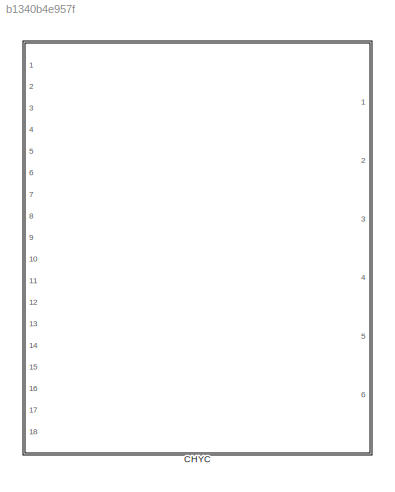
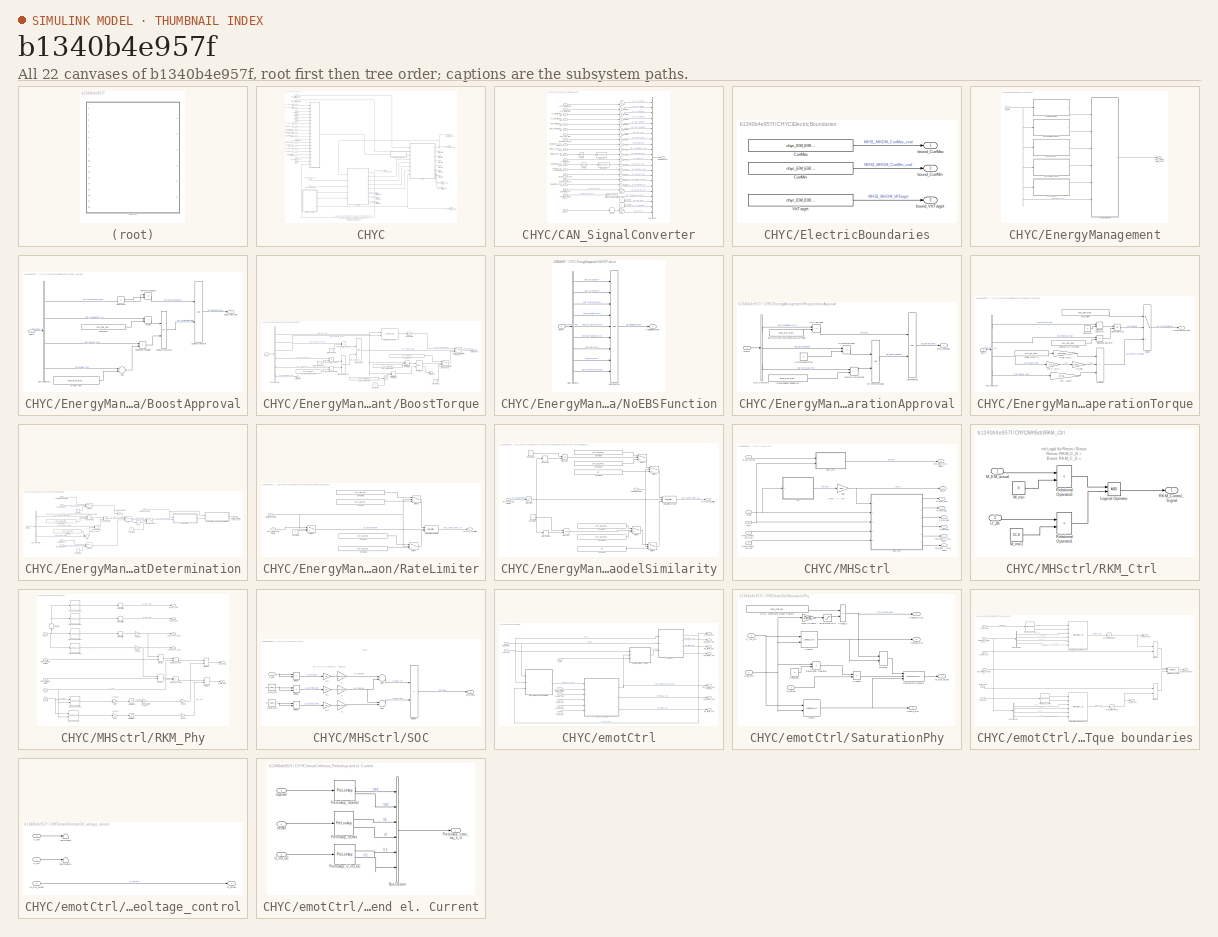
[diagram: thumbnail index - all 22 canvases of the model, root first then tree order]
MODEL slx_b1340b4e957f
KIND library
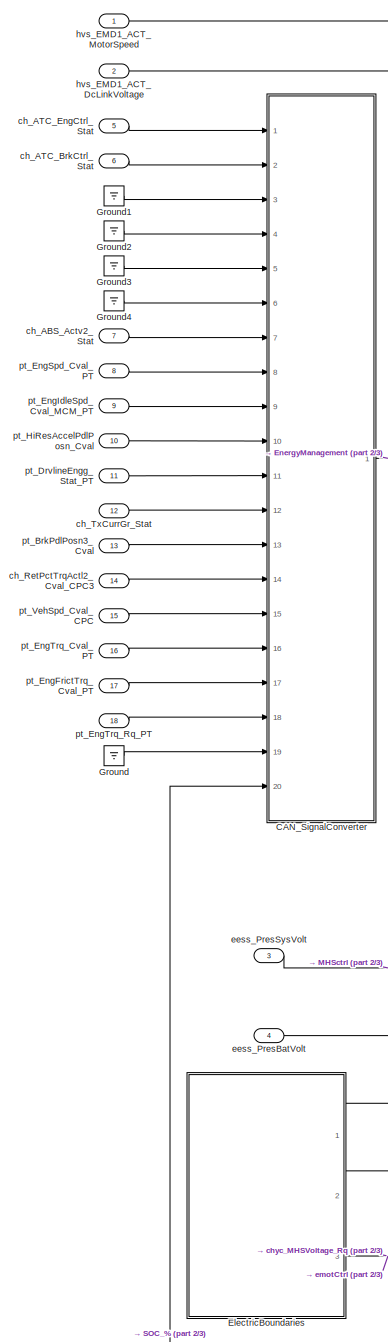
[diagram: CHYC - part 1/3, left side, full height]
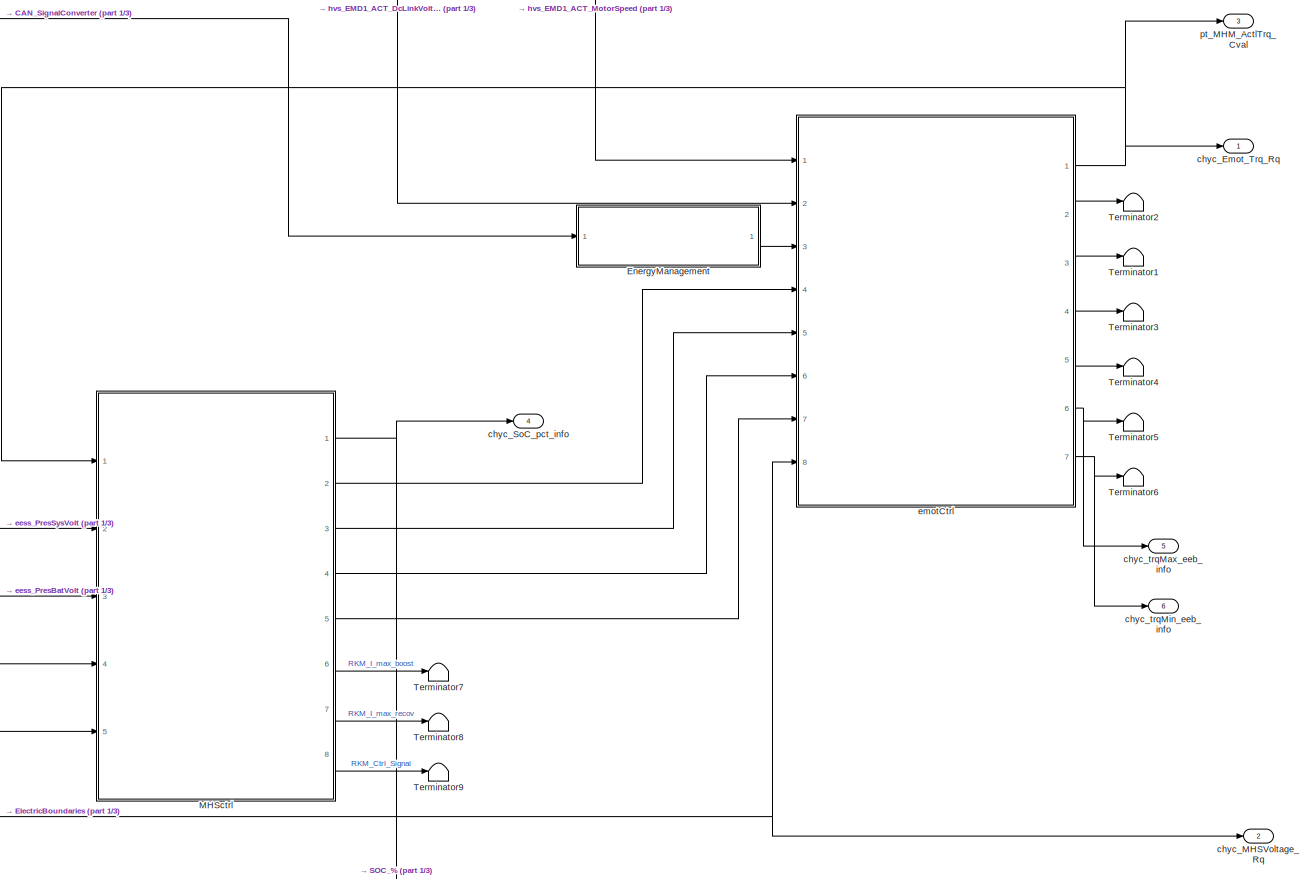
[diagram: CHYC - part 2/3, central region]
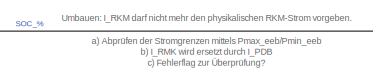
[diagram: CHYC - part 3/3, bottom center region]
BLOCK [SubSystem] CHYC
  FunctionWithSeparateData = off
  MaskHideContents = off
  MinAlgLoopOccurrences = off
  Opaque = off
  Ports = [18, 6]
  PropExecContextOutsideSubsystem = off
  RTWSystemCode = Auto
  RequestExecContextInheritance = off
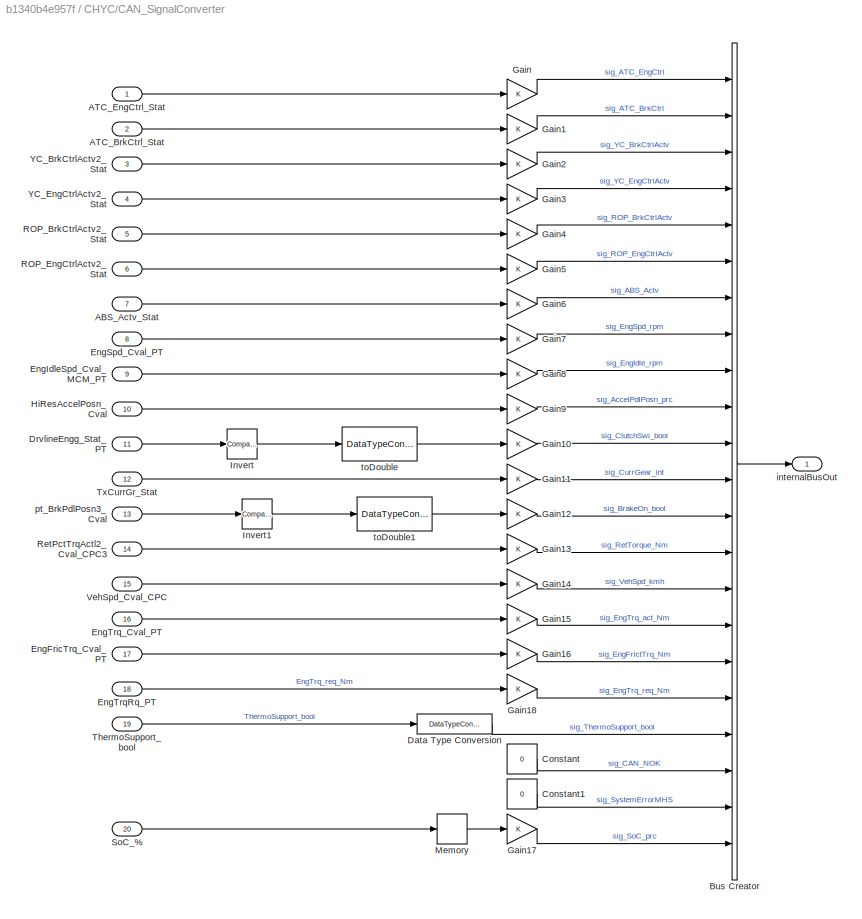
BLOCK [SubSystem] CHYC/CAN_SignalConverter
  FunctionWithSeparateData = off
  MaskHideContents = off
  MinAlgLoopOccurrences = off
  Opaque = off
  Ports = [20, 1]
  PropExecContextOutsideSubsystem = off
  RTWSystemCode = Auto
  RequestExecContextInheritance = off
BLOCK [Inport] CHYC/CAN_SignalConverter/ABS_Actv_Stat
  IconDisplay = Port number
  Port = 7
BLOCK [Inport] CHYC/CAN_SignalConverter/ATC_BrkCtrl_Stat
  IconDisplay = Port number
  Port = 2
BLOCK [Inport] CHYC/CAN_SignalConverter/ATC_EngCtrl_Stat
  IconDisplay = Port number
BLOCK [BusCreator] CHYC/CAN_SignalConverter/Bus Creator
  DisplayOption = bar
  Inputs = 22
  Ports = [22, 1]
BLOCK [Constant] CHYC/CAN_SignalConverter/Constant
  Value = 0
BLOCK [Constant] CHYC/CAN_SignalConverter/Constant1
  Value = 0
BLOCK [DataTypeConversion] CHYC/CAN_SignalConverter/Data Type Conversion
  RndMeth = Floor
  SaturateOnIntegerOverflow = off
BLOCK [Inport] CHYC/CAN_SignalConverter/DrvlineEngg_Stat_PT
  IconDisplay = Port number
  Port = 11
BLOCK [Inport] CHYC/CAN_SignalConverter/EngFricTrq_Cval_PT
  IconDisplay = Port number
  Port = 17
BLOCK [Inport] CHYC/CAN_SignalConverter/EngIdleSpd_Cval_MCM_PT
  IconDisplay = Port number
  Port = 9
BLOCK [Inport] CHYC/CAN_SignalConverter/EngSpd_Cval_PT
  IconDisplay = Port number
  Port = 8
BLOCK [Inport] CHYC/CAN_SignalConverter/EngTrqRq_PT
  IconDisplay = Port number
  Port = 18
BLOCK [Inport] CHYC/CAN_SignalConverter/EngTrq_Cval_PT
  IconDisplay = Port number
  Port = 16
BLOCK [Gain] CHYC/CAN_SignalConverter/Gain
  OutDataTypeStr = Inherit: Inherit via internal rule
  ParamDataTypeStr = Inherit: Inherit via internal rule
  SaturateOnIntegerOverflow = off
BLOCK [Gain] CHYC/CAN_SignalConverter/Gain1
  OutDataTypeStr = Inherit: Inherit via internal rule
  ParamDataTypeStr = Inherit: Inherit via internal rule
  SaturateOnIntegerOverflow = off
BLOCK [Gain] CHYC/CAN_SignalConverter/Gain10
  OutDataTypeStr = Inherit: Inherit via internal rule
  ParamDataTypeStr = Inherit: Inherit via internal rule
  SaturateOnIntegerOverflow = off
BLOCK [Gain] CHYC/CAN_SignalConverter/Gain11
  OutDataTypeStr = Inherit: Inherit via internal rule
  ParamDataTypeStr = Inherit: Inherit via internal rule
  SaturateOnIntegerOverflow = off
BLOCK [Gain] CHYC/CAN_SignalConverter/Gain12
  OutDataTypeStr = Inherit: Inherit via internal rule
  ParamDataTypeStr = Inherit: Inherit via internal rule
  SaturateOnIntegerOverflow = off
BLOCK [Gain] CHYC/CAN_SignalConverter/Gain13
  OutDataTypeStr = Inherit: Inherit via internal rule
  ParamDataTypeStr = Inherit: Inherit via internal rule
  SaturateOnIntegerOverflow = off
BLOCK [Gain] CHYC/CAN_SignalConverter/Gain14
  OutDataTypeStr = Inherit: Inherit via internal rule
  ParamDataTypeStr = Inherit: Inherit via internal rule
  SaturateOnIntegerOverflow = off
BLOCK [Gain] CHYC/CAN_SignalConverter/Gain15
  OutDataTypeStr = Inherit: Inherit via internal rule
  ParamDataTypeStr = Inherit: Inherit via internal rule
  SaturateOnIntegerOverflow = off
BLOCK [Gain] CHYC/CAN_SignalConverter/Gain16
  OutDataTypeStr = Inherit: Inherit via internal rule
  ParamDataTypeStr = Inherit: Inherit via internal rule
  SaturateOnIntegerOverflow = off
BLOCK [Gain] CHYC/CAN_SignalConverter/Gain17
  OutDataTypeStr = Inherit: Inherit via internal rule
  ParamDataTypeStr = Inherit: Inherit via internal rule
  SaturateOnIntegerOverflow = off
BLOCK [Gain] CHYC/CAN_SignalConverter/Gain18
  OutDataTypeStr = Inherit: Inherit via internal rule
  ParamDataTypeStr = Inherit: Inherit via internal rule
  SaturateOnIntegerOverflow = off
BLOCK [Gain] CHYC/CAN_SignalConverter/Gain2
  OutDataTypeStr = Inherit: Inherit via internal rule
  ParamDataTypeStr = Inherit: Inherit via internal rule
  SaturateOnIntegerOverflow = off
BLOCK [Gain] CHYC/CAN_SignalConverter/Gain3
  OutDataTypeStr = Inherit: Inherit via internal rule
  ParamDataTypeStr = Inherit: Inherit via internal rule
  SaturateOnIntegerOverflow = off
BLOCK [Gain] CHYC/CAN_SignalConverter/Gain4
  OutDataTypeStr = Inherit: Inherit via internal rule
  ParamDataTypeStr = Inherit: Inherit via internal rule
  SaturateOnIntegerOverflow = off
BLOCK [Gain] CHYC/CAN_SignalConverter/Gain5
  OutDataTypeStr = Inherit: Inherit via internal rule
  ParamDataTypeStr = Inherit: Inherit via internal rule
  SaturateOnIntegerOverflow = off
BLOCK [Gain] CHYC/CAN_SignalConverter/Gain6
  OutDataTypeStr = Inherit: Inherit via internal rule
  ParamDataTypeStr = Inherit: Inherit via internal rule
  SaturateOnIntegerOverflow = off
BLOCK [Gain] CHYC/CAN_SignalConverter/Gain7
  OutDataTypeStr = Inherit: Inherit via internal rule
  ParamDataTypeStr = Inherit: Inherit via internal rule
  SaturateOnIntegerOverflow = off
BLOCK [Gain] CHYC/CAN_SignalConverter/Gain8
  OutDataTypeStr = Inherit: Inherit via internal rule
  ParamDataTypeStr = Inherit: Inherit via internal rule
  SaturateOnIntegerOverflow = off
BLOCK [Gain] CHYC/CAN_SignalConverter/Gain9
  OutDataTypeStr = Inherit: Inherit via internal rule
  ParamDataTypeStr = Inherit: Inherit via internal rule
  SaturateOnIntegerOverflow = off
BLOCK [Inport] CHYC/CAN_SignalConverter/HiResAccelPosn_Cval
  IconDisplay = Port number
  Port = 10
BLOCK [Reference] CHYC/CAN_SignalConverter/Invert  REF=simulink/Logic and Bit
Operations/Compare
To Constant
  OutDataTypeStr = boolean
  Ports = [1, 1]
  SourceBlock = simulink/Logic and Bit\nOperations/Compare\nTo Constant
  SourceType = Compare To Constant
  ZeroCross = on
  const = 0.5
  relop = <=
BLOCK [Reference] CHYC/CAN_SignalConverter/Invert1  REF=simulink/Logic and Bit
Operations/Compare
To Constant
  OutDataTypeStr = boolean
  Ports = [1, 1]
  SourceBlock = simulink/Logic and Bit\nOperations/Compare\nTo Constant
  SourceType = Compare To Constant
  ZeroCross = on
  const = 1
  relop = >=
BLOCK [Memory] CHYC/CAN_SignalConverter/Memory
BLOCK [Inport] CHYC/CAN_SignalConverter/ROP_BrkCtrlActv2_Stat
  IconDisplay = Port number
  Port = 5
BLOCK [Inport] CHYC/CAN_SignalConverter/ROP_EngCtrlActv2_Stat
  IconDisplay = Port number
  Port = 6
BLOCK [Inport] CHYC/CAN_SignalConverter/RetPctTrqActl2_Cval_CPC3
  IconDisplay = Port number
  Port = 14
BLOCK [Inport] CHYC/CAN_SignalConverter/SoC_%
  IconDisplay = Port number
  Port = 20
BLOCK [Inport] CHYC/CAN_SignalConverter/ThermoSupport_bool
  IconDisplay = Port number
  Port = 19
BLOCK [Inport] CHYC/CAN_SignalConverter/TxCurrGr_Stat
  IconDisplay = Port number
  Port = 12
BLOCK [Inport] CHYC/CAN_SignalConverter/VehSpd_Cval_CPC
  IconDisplay = Port number
  Port = 15
BLOCK [Inport] CHYC/CAN_SignalConverter/YC_BrkCtrlActv2_Stat
  IconDisplay = Port number
  Port = 3
BLOCK [Inport] CHYC/CAN_SignalConverter/YC_EngCtrlActv2_Stat
  IconDisplay = Port number
  Port = 4
BLOCK [Outport] CHYC/CAN_SignalConverter/internalBusOut
  IconDisplay = Port number
BLOCK [Inport] CHYC/CAN_SignalConverter/pt_BrkPdlPosn3_Cval
  IconDisplay = Port number
  Port = 13
BLOCK [DataTypeConversion] CHYC/CAN_SignalConverter/toDouble
  RndMeth = Floor
  SaturateOnIntegerOverflow = off
BLOCK [DataTypeConversion] CHYC/CAN_SignalConverter/toDouble1
  RndMeth = Floor
  SaturateOnIntegerOverflow = off
BLOCK [SubSystem] CHYC/ElectricBoundaries
  FunctionWithSeparateData = off
  MaskHideContents = off
  MinAlgLoopOccurrences = off
  Opaque = off
  Ports = [0, 3]
  PropExecContextOutsideSubsystem = off
  RTWSystemCode = Auto
  RequestExecContextInheritance = off
BLOCK [Constant] CHYC/ElectricBoundaries/CurrMax
  Value = chyc_EM_ElBound_CurrMax
BLOCK [Constant] CHYC/ElectricBoundaries/CurrMin
  Value = chyc_EM_ElBound_CurrMin
BLOCK [Constant] CHYC/ElectricBoundaries/VltTarget
  Value = chyc_EM_ElBound_VltTarget
BLOCK [Outport] CHYC/ElectricBoundaries/bound_CurrMax
  IconDisplay = Port number
BLOCK [Outport] CHYC/ElectricBoundaries/bound_CurrMin
  IconDisplay = Port number
  Port = 2
BLOCK [Outport] CHYC/ElectricBoundaries/bound_VltTarget
  IconDisplay = Port number
  Port = 3
BLOCK [SubSystem] CHYC/EnergyManagement
  FunctionWithSeparateData = off
  MaskHideContents = off
  MinAlgLoopOccurrences = off
  Opaque = off
  Ports = [1, 1]
  PropExecContextOutsideSubsystem = off
  RTWSystemCode = Auto
  RequestExecContextInheritance = off
BLOCK [SubSystem] CHYC/EnergyManagement/BoostApproval
  FunctionWithSeparateData = off
  MaskHideContents = off
  MinAlgLoopOccurrences = off
  Opaque = off
  Ports = [1, 1]
  PropExecContextOutsideSubsystem = off
  RTWSystemCode = Auto
  RequestExecContextInheritance = off
BLOCK [RelationalOperator] CHYC/EnergyManagement/BoostApproval/Accpdl
  InputSameDT = off
  Operator = >
  OutDataTypeStr = boolean
  Ports = [2, 1]
BLOCK [Sum] CHYC/EnergyManagement/BoostApproval/Add
  AccumDataTypeStr = Inherit: Same as first input
  InputSameDT = off
  OutDataTypeStr = Inherit: Inherit via internal rule
  Ports = [2, 1]
  SaturateOnIntegerOverflow = off
BLOCK [Outport] CHYC/EnergyManagement/BoostApproval/BoostApproved
  IconDisplay = Port number
BLOCK [BusSelector] CHYC/EnergyManagement/BoostApproval/Bus Selector2
  OutputSignals = sig_ThermoSupport_bool,sig_AccelPdlPosn_prc,sig_EngSpd_rpm,sig_EngIdle_rpm
  Ports = [1, 4]
BLOCK [Inport] CHYC/EnergyManagement/BoostApproval/BusIn
  IconDisplay = Port number
BLOCK [Constant] CHYC/EnergyManagement/BoostApproval/Constant1
  OutDataTypeStr = uint16
  Value = chyc_EM_BstApp_thresh_AccPedal
BLOCK [Constant] CHYC/EnergyManagement/BoostApproval/Constant2
  OutDataTypeStr = uint16
  Value = 0
BLOCK [Logic] CHYC/EnergyManagement/BoostApproval/Logical Operator
  AllPortsSameDT = off
  OutDataTypeStr = boolean
  Ports = [2, 1]
BLOCK [Logic] CHYC/EnergyManagement/BoostApproval/Logical Operator1
  AllPortsSameDT = off
  Operator = OR
  OutDataTypeStr = boolean
  Ports = [2, 1]
BLOCK [RelationalOperator] CHYC/EnergyManagement/BoostApproval/NoDriveoffPossible
  InputSameDT = off
  Operator = <
  OutDataTypeStr = boolean
  Ports = [2, 1]
BLOCK [RelationalOperator] CHYC/EnergyManagement/BoostApproval/NoThermoSupport
  InputSameDT = off
  Operator = ==
  OutDataTypeStr = boolean
  Ports = [2, 1]
BLOCK [Constant] CHYC/EnergyManagement/BoostApproval/offset rpm
  Value = chyc_EM_BstApp_DeltaEngSpd
BLOCK [SubSystem] CHYC/EnergyManagement/BoostTorque
  FunctionWithSeparateData = off
  MaskHideContents = off
  MinAlgLoopOccurrences = off
  Opaque = off
  Ports = [1, 1]
  PropExecContextOutsideSubsystem = off
  RTWSystemCode = Auto
  RequestExecContextInheritance = off
BLOCK [Logic] CHYC/EnergyManagement/BoostTorque/ApproveRec1
  AllPortsSameDT = off
  OutDataTypeStr = boolean
  Ports = [2, 1]
BLOCK [BusSelector] CHYC/EnergyManagement/BoostTorque/Bus Selector4
  OutputSignals = sig_SoC_prc,sig_VehSpd_kmh,sig_EngTrq_req_Nm,sig_ClutchSwi_bool,sig_CurrGear_int,sig_EngFrictTrq_Nm
  Ports = [1, 6]
BLOCK [Inport] CHYC/EnergyManagement/BoostTorque/BusIn
  IconDisplay = Port number
BLOCK [Constant] CHYC/EnergyManagement/BoostTorque/ClutchOpenisOne1
  Value = 0
BLOCK [Constant] CHYC/EnergyManagement/BoostTorque/Constant2
  Value = chyc_EM_BstTrq_TrqAuxSupport
BLOCK [Logic] CHYC/EnergyManagement/BoostTorque/DriveTrainReady1
  AllPortsSameDT = off
  OutDataTypeStr = boolean
  Ports = [2, 1]
BLOCK [Constant] CHYC/EnergyManagement/BoostTorque/Hysteresis
  Value = 2
BLOCK [Constant] CHYC/EnergyManagement/BoostTorque/MinEngTrqRq
  Value = 0
BLOCK [RelationalOperator] CHYC/EnergyManagement/BoostTorque/RecOnlyInPosGear
  InputSameDT = off
  Operator = >
  OutDataTypeStr = boolean
  Ports = [2, 1]
BLOCK [RelationalOperator] CHYC/EnergyManagement/BoostTorque/RecOnlyInPosGear1
  InputSameDT = off
  Operator = >
  OutDataTypeStr = boolean
  Ports = [2, 1]
BLOCK [RelationalOperator] CHYC/EnergyManagement/BoostTorque/RecOnlyInPosGear4
  InputSameDT = off
  Operator = ==
  OutDataTypeStr = boolean
  Ports = [2, 1]
BLOCK [RelationalOperator] CHYC/EnergyManagement/BoostTorque/Relational Operator1
  InputSameDT = off
  Operator = <
  OutDataTypeStr = boolean
  Ports = [2, 1]
BLOCK [RelationalOperator] CHYC/EnergyManagement/BoostTorque/Relational Operator5
  InputSameDT = off
  Operator = >
  OutDataTypeStr = boolean
  Ports = [2, 1]
BLOCK [Constant] CHYC/EnergyManagement/BoostTorque/Reversegearisnegative
  Value = chyc_EM_BstTrq_thresh_GearforBoost
  VectorParams1D = off
BLOCK [Reference] CHYC/EnergyManagement/BoostTorque/S-R Flip-Flop  REF=simulink_extras/Flip Flops/S-R
Flip-Flop
  Ports = [2, 2]
  SourceBlock = simulink_extras/Flip Flops/S-R\nFlip-Flop
  SourceType = SRFlipFlop
  initial_condition = 0
BLOCK [Constant] CHYC/EnergyManagement/BoostTorque/SoC_Threshold
  Value = chyc_EM_BstTrq_thresh_SoCforAuxSupport
BLOCK [Constant] CHYC/EnergyManagement/BoostTorque/SoC_Threshold1
  Value = chyc_EM_BstTrq_thresh_SoCforAuxSupport
BLOCK [Sum] CHYC/EnergyManagement/BoostTorque/Sum
  IconShape = round
  InputSameDT = off
  Inputs = |+-
  OutDataTypeStr = Inherit: Inherit via internal rule
  Ports = [2, 1]
  SaturateOnIntegerOverflow = off
BLOCK [Outport] CHYC/EnergyManagement/BoostTorque/TargetBoost
  IconDisplay = Port number
BLOCK [Lookup_n-D] CHYC/EnergyManagement/BoostTorque/TargetTorque Boost
  BreakpointsForDimension1 = chyc_EM_BstTrq_BrkPt_SoC
  BreakpointsForDimension2 = chyc_EM_BstTrq_BrkPt_VehSpd
  ExtrapMethod = Clip
  Ports = [2, 1]
  RndMeth = Simplest
  Table = chyc_EM_BstTrq_Map_BstTrq
  UseLastTableValue = on
BLOCK [Terminator] CHYC/EnergyManagement/BoostTorque/Terminator
BLOCK [Terminator] CHYC/EnergyManagement/BoostTorque/Terminator1
BLOCK [Switch] CHYC/EnergyManagement/BoostTorque/TrqAuxSupportOrDrivingBoost
  Criteria = u2 > Threshold
  InputSameDT = off
  SaturateOnIntegerOverflow = off
BLOCK [Switch] CHYC/EnergyManagement/BoostTorque/TrqAuxSupportOrDrivingBoost1
  Criteria = u2 > Threshold
  InputSameDT = off
  SaturateOnIntegerOverflow = off
BLOCK [Constant] CHYC/EnergyManagement/BoostTorque/ZeroTorque
  Value = 0
BLOCK [Saturate] CHYC/EnergyManagement/BoostTorque/no negative
  InputPortMap = u0
  LowerLimit = 0
  Ports = [1, 1]
  UpperLimit = inf
BLOCK [Inport] CHYC/EnergyManagement/BusIn
  IconDisplay = Port number
BLOCK [Outport] CHYC/EnergyManagement/MHS1_MHDM_TarTrq_cval
  IconDisplay = Port number
BLOCK [SubSystem] CHYC/EnergyManagement/NoEBSFunction
  FunctionWithSeparateData = off
  MaskHideContents = off
  MinAlgLoopOccurrences = off
  Opaque = off
  Ports = [1, 1]
  PropExecContextOutsideSubsystem = off
  RTWSystemCode = Auto
  RequestExecContextInheritance = off
BLOCK [Logic] CHYC/EnergyManagement/NoEBSFunction/ApproveRec
  AllPortsSameDT = off
  Inputs = 9
  Operator = NOR
  OutDataTypeStr = boolean
  Ports = [9, 1]
BLOCK [BusSelector] CHYC/EnergyManagement/NoEBSFunction/Bus Selector
  OutputSignals = sig_ATC_EngCtrl,sig_ATC_BrkCtrl,sig_YC_BrkCtrlActv,sig_YC_EngCtrlActv,sig_ROP_BrkCtrlActv,sig_ROP_EngCtrlActv,sig_ABS_Actv,sig_CAN_NOK,sig_SystemErrorMHS
  Ports = [1, 9]
BLOCK [Inport] CHYC/EnergyManagement/NoEBSFunction/BusIn
  IconDisplay = Port number
BLOCK [Outport] CHYC/EnergyManagement/NoEBSFunction/NoEBSFunction
  IconDisplay = Port number
BLOCK [SubSystem] CHYC/EnergyManagement/RecuperationApproval
  FunctionWithSeparateData = off
  MaskHideContents = off
  MinAlgLoopOccurrences = off
  Opaque = off
  Ports = [1, 1]
  PropExecContextOutsideSubsystem = off
  RTWSystemCode = Auto
  RequestExecContextInheritance = off
BLOCK [Logic] CHYC/EnergyManagement/RecuperationApproval/ApproveRec
  AllPortsSameDT = off
  OutDataTypeStr = boolean
  Ports = [2, 1]
BLOCK [BusSelector] CHYC/EnergyManagement/RecuperationApproval/Bus Selector1
  OutputSignals = sig_AccelPdlPosn_prc,sig_ClutchSwi_bool,sig_CurrGear_int
  Ports = [1, 3]
BLOCK [Inport] CHYC/EnergyManagement/RecuperationApproval/BusIn
  IconDisplay = Port number
BLOCK [RelationalOperator] CHYC/EnergyManagement/RecuperationApproval/ClutchNotOpen
  InputSameDT = off
  Operator = ==
  OutDataTypeStr = boolean
  Ports = [2, 1]
BLOCK [Constant] CHYC/EnergyManagement/RecuperationApproval/ClutchOpenisOne
  Value = 0
BLOCK [Logic] CHYC/EnergyManagement/RecuperationApproval/DriveTrainReady
  AllPortsSameDT = off
  OutDataTypeStr = boolean
  Ports = [2, 1]
BLOCK [RelationalOperator] CHYC/EnergyManagement/RecuperationApproval/No AccPedal
  InputSameDT = off
  Operator = ==
  OutDataTypeStr = boolean
  Ports = [2, 1]
BLOCK [Outport] CHYC/EnergyManagement/RecuperationApproval/RecApproved
  IconDisplay = Port number
BLOCK [RelationalOperator] CHYC/EnergyManagement/RecuperationApproval/RecOnlyInPosGear
  InputSameDT = off
  Operator = >
  OutDataTypeStr = boolean
  Ports = [2, 1]
BLOCK [Constant] CHYC/EnergyManagement/RecuperationApproval/Reversegearisnegative
  Value = chyc_EM_RecApp_thresh_GearforRecup
BLOCK [Constant] CHYC/EnergyManagement/RecuperationApproval/par_EM_RecApp_thresh_NoAccPedal
  Value = chyc_EM_RecApp_thresh_NoAccPedal
BLOCK [SubSystem] CHYC/EnergyManagement/RecuperationTorque
  FunctionWithSeparateData = off
  MaskHideContents = off
  MinAlgLoopOccurrences = off
  Opaque = off
  Ports = [1, 1]
  PropExecContextOutsideSubsystem = off
  RTWSystemCode = Auto
  RequestExecContextInheritance = off
BLOCK [Gain] CHYC/EnergyManagement/RecuperationTorque/1//R_Rad
  Gain = 1/chyc_EM_RecTrq_RWhl
  OutDataTypeStr = Inherit: Inherit via internal rule
  ParamDataTypeStr = Inherit: Inherit via internal rule
  SaturateOnIntegerOverflow = off
BLOCK [BusSelector] CHYC/EnergyManagement/RecuperationTorque/Bus Selector3
  OutputSignals = sig_BrakeOn_bool,sig_RetTorque_Nm,sig_VehSpd_kmh,sig_EngSpd_rpm
  Ports = [1, 4]
BLOCK [Inport] CHYC/EnergyManagement/RecuperationTorque/BusIn
  IconDisplay = Port number
BLOCK [Constant] CHYC/EnergyManagement/RecuperationTorque/Constant1
  Value = 0
BLOCK [Logic] CHYC/EnergyManagement/RecuperationTorque/Logical Operator
  AllPortsSameDT = off
  Operator = OR
  OutDataTypeStr = boolean
  Ports = [2, 1]
BLOCK [Constant] CHYC/EnergyManagement/RecuperationTorque/Max_Reku
  Value = chyc_EM_RecTrq_MaxRecTrq
BLOCK [Product] CHYC/EnergyManagement/RecuperationTorque/Product
  InputSameDT = off
  Inputs = **/
  OutDataTypeStr = Inherit: Inherit via internal rule
  Ports = [3, 1]
  SaturateOnIntegerOverflow = off
BLOCK [RelationalOperator] CHYC/EnergyManagement/RecuperationTorque/Relational Operator
  InputSameDT = off
  Operator = <=
  OutDataTypeStr = boolean
  Ports = [2, 1]
BLOCK [RelationalOperator] CHYC/EnergyManagement/RecuperationTorque/Relational Operator1
  InputSameDT = off
  Operator = >
  OutDataTypeStr = boolean
  Ports = [2, 1]
BLOCK [Switch] CHYC/EnergyManagement/RecuperationTorque/Switch
  Criteria = u2 > Threshold
  InputSameDT = off
  SaturateOnIntegerOverflow = off
BLOCK [Outport] CHYC/EnergyManagement/RecuperationTorque/TargetRecuperation
  IconDisplay = Port number
BLOCK [Gain] CHYC/EnergyManagement/RecuperationTorque/km//h-->m//s
  Gain = 1/3.6
  OutDataTypeStr = Inherit: Inherit via internal rule
  ParamDataTypeStr = Inherit: Inherit via internal rule
  SaturateOnIntegerOverflow = off
BLOCK [Gain] CHYC/EnergyManagement/RecuperationTorque/magic factor
  Gain = chyc_EM_RecTrq_PropFactor
  OutDataTypeStr = Inherit: Inherit via internal rule
  ParamDataTypeStr = Inherit: Inherit via internal rule
  SaturateOnIntegerOverflow = off
BLOCK [Constant] CHYC/EnergyManagement/RecuperationTorque/negative prc threshold
  Value = chyc_EM_RecTrq_thresh_RetTrq
BLOCK [Gain] CHYC/EnergyManagement/RecuperationTorque/rpm-->rad//s
  Gain = pi/30
  OutDataTypeStr = Inherit: Inherit via internal rule
  ParamDataTypeStr = Inherit: Inherit via internal rule
  SaturateOnIntegerOverflow = off
BLOCK [Constant] CHYC/EnergyManagement/RecuperationTorque/vehicle mass [t]
  Value = chyc_EM_RecTrq_RefWeight
BLOCK [SubSystem] CHYC/EnergyManagement/TargetDetermination
  FunctionWithSeparateData = off
  MaskHideContents = off
  MinAlgLoopOccurrences = off
  Opaque = off
  Ports = [6, 1]
  PropExecContextOutsideSubsystem = off
  RTWSystemCode = Auto
  RequestExecContextInheritance = off
BLOCK [Abs] CHYC/EnergyManagement/TargetDetermination/Abs
  SaturateOnIntegerOverflow = off
BLOCK [Sum] CHYC/EnergyManagement/TargetDetermination/Add
  InputSameDT = off
  OutDataTypeStr = Inherit: Inherit via internal rule
  Ports = [2, 1]
  SaturateOnIntegerOverflow = off
BLOCK [Inport] CHYC/EnergyManagement/TargetDetermination/BoostApproved
  IconDisplay = Port number
  Port = 3
BLOCK [BusSelector] CHYC/EnergyManagement/TargetDetermination/Bus Selector5
  OutputSignals = sig_EngTrq_act_Nm,sig_EngSpd_rpm,sig_EngIdle_rpm
  Ports = [1, 3]
BLOCK [Inport] CHYC/EnergyManagement/TargetDetermination/BusIn
  IconDisplay = Port number
  Port = 6
BLOCK [Constant] CHYC/EnergyManagement/TargetDetermination/Constant
  Value = 0
BLOCK [Constant] CHYC/EnergyManagement/TargetDetermination/Constant1
  Value = 0
BLOCK [Constant] CHYC/EnergyManagement/TargetDetermination/Constant2
  Value = chyc_EM_TgtDet_thresh_EngTrqforRecup
BLOCK [Constant] CHYC/EnergyManagement/TargetDetermination/Constant8
  Value = 0
BLOCK [Logic] CHYC/EnergyManagement/TargetDetermination/Logical Operator
  AllPortsSameDT = off
  OutDataTypeStr = boolean
  Ports = [2, 1]
BLOCK [Outport] CHYC/EnergyManagement/TargetDetermination/MHS1_MHDM_TarTrq_cval
  IconDisplay = Port number
BLOCK [Inport] CHYC/EnergyManagement/TargetDetermination/NoEBSFunction
  IconDisplay = Port number
BLOCK [SubSystem] CHYC/EnergyManagement/TargetDetermination/RateLimiter
  FunctionWithSeparateData = off
  MaskHideContents = off
  MinAlgLoopOccurrences = off
  Opaque = off
  Ports = [2, 1]
  PropExecContextOutsideSubsystem = off
  RTWSystemCode = Auto
  RequestExecContextInheritance = off
BLOCK [Constant] CHYC/EnergyManagement/TargetDetermination/RateLimiter/Constant3
  Value = 0
BLOCK [Constant] CHYC/EnergyManagement/TargetDetermination/RateLimiter/Constant4
  Value = chyc_EM_TgtDet_trqRateLimit_EBS_activate_pos
BLOCK [Constant] CHYC/EnergyManagement/TargetDetermination/RateLimiter/Constant5
  Value = chyc_EM_TgtDet_trqRateLimit_boost
BLOCK [Constant] CHYC/EnergyManagement/TargetDetermination/RateLimiter/Constant6
  Value = chyc_EM_TgtDet_trqRateLimit_EBS_activate_neg
BLOCK [Constant] CHYC/EnergyManagement/TargetDetermination/RateLimiter/Constant7
  Value = chyc_EM_TgtDet_trqRateLimit_recup
BLOCK [Inport] CHYC/EnergyManagement/TargetDetermination/RateLimiter/NoEBSFunction
  IconDisplay = Port number
BLOCK [Reference] CHYC/EnergyManagement/TargetDetermination/RateLimiter/Rate Limiter Dynamic  REF=simulink/Discontinuities/Rate Limiter
Dynamic
  Ports = [3, 1]
  SourceBlock = simulink/Discontinuities/Rate Limiter\nDynamic
  SourceType = Rate Limiter Dynamic
BLOCK [Switch] CHYC/EnergyManagement/TargetDetermination/RateLimiter/Switch3
  Criteria = u2 > Threshold
  InputSameDT = off
  SaturateOnIntegerOverflow = off
BLOCK [Switch] CHYC/EnergyManagement/TargetDetermination/RateLimiter/Switch4
  Criteria = u2 > Threshold
  InputSameDT = off
  SaturateOnIntegerOverflow = off
BLOCK [Switch] CHYC/EnergyManagement/TargetDetermination/RateLimiter/Switch5
  Criteria = u2 > Threshold
  InputSameDT = off
  SaturateOnIntegerOverflow = off
BLOCK [Outport] CHYC/EnergyManagement/TargetDetermination/RateLimiter/TarTrq_cval_limited
  IconDisplay = Port number
BLOCK [Inport] CHYC/EnergyManagement/TargetDetermination/RateLimiter/sig_TrqTarget_infRate
  IconDisplay = Port number
  Port = 2
BLOCK [SubSystem] CHYC/EnergyManagement/TargetDetermination/RateLimiter_Fummel_ModelSimilarity
  FunctionWithSeparateData = off
  MaskHideContents = off
  MinAlgLoopOccurrences = off
  Opaque = off
  Ports = [2, 1]
  PropExecContextOutsideSubsystem = off
  RTWSystemCode = Auto
  RequestExecContextInheritance = off
BLOCK [Constant] CHYC/EnergyManagement/TargetDetermination/RateLimiter_Fummel_ModelSimilarity/Constant10
  Value = chyc_EM_Fummel_trqRateLimit_ZeroCross_recup
BLOCK [Constant] CHYC/EnergyManagement/TargetDetermination/RateLimiter_Fummel_ModelSimilarity/Constant13
BLOCK [Constant] CHYC/EnergyManagement/TargetDetermination/RateLimiter_Fummel_ModelSimilarity/Constant14
  Value = chyc_EM_Fummel_trqRateLimit_ZeroCross_boost
BLOCK [Constant] CHYC/EnergyManagement/TargetDetermination/RateLimiter_Fummel_ModelSimilarity/Constant4
  Value = inf
BLOCK [Constant] CHYC/EnergyManagement/TargetDetermination/RateLimiter_Fummel_ModelSimilarity/Constant5
  Value = chyc_EM_Fummel_trqRateLimit_boost
BLOCK [Constant] CHYC/EnergyManagement/TargetDetermination/RateLimiter_Fummel_ModelSimilarity/Constant6
  Value = -inf
BLOCK [Constant] CHYC/EnergyManagement/TargetDetermination/RateLimiter_Fummel_ModelSimilarity/Constant7
  Value = chyc_EM_Fummel_trqRateLimit_recup
BLOCK [Constant] CHYC/EnergyManagement/TargetDetermination/RateLimiter_Fummel_ModelSimilarity/Constant9
BLOCK [HitCross] CHYC/EnergyManagement/TargetDetermination/RateLimiter_Fummel_ModelSimilarity/Hit  Crossing
  HitCrossingDirection = rising
  HitCrossingOffset = chyc_EM_Fummel_trqThreshold_ZeroCross_boost
  Ports = [1, 1]
BLOCK [HitCross] CHYC/EnergyManagement/TargetDetermination/RateLimiter_Fummel_ModelSimilarity/Hit  Crossing1
  HitCrossingDirection = falling
  HitCrossingOffset = chyc_EM_Fummel_trqThreshold_ZeroCross_recup
  Ports = [1, 1]
BLOCK [Integrator] CHYC/EnergyManagement/TargetDetermination/RateLimiter_Fummel_ModelSimilarity/Integrator
  ExternalReset = rising
  Ports = [2, 1]
BLOCK [Integrator] CHYC/EnergyManagement/TargetDetermination/RateLimiter_Fummel_ModelSimilarity/Integrator1
  ExternalReset = rising
  LimitOutput = on
  LowerSaturationLimit = 0
  Ports = [2, 1]
  UpperSaturationLimit = 100
BLOCK [Inport] CHYC/EnergyManagement/TargetDetermination/RateLimiter_Fummel_ModelSimilarity/NoEBSFunction
  IconDisplay = Port number
BLOCK [Reference] CHYC/EnergyManagement/TargetDetermination/RateLimiter_Fummel_ModelSimilarity/Rate Limiter Dynamic  REF=simulink/Discontinuities/Rate Limiter
Dynamic
  Ports = [3, 1]
  SourceBlock = simulink/Discontinuities/Rate Limiter\nDynamic
  SourceType = Rate Limiter Dynamic
BLOCK [Saturate] CHYC/EnergyManagement/TargetDetermination/RateLimiter_Fummel_ModelSimilarity/Saturation
  InputPortMap = u0
  LowerLimit = chyc_EM_Fummel_TrqTargetLimit_recup
  Ports = [1, 1]
  UpperLimit = chyc_EM_Fummel_TrqTargetLimit_boost
BLOCK [Switch] CHYC/EnergyManagement/TargetDetermination/RateLimiter_Fummel_ModelSimilarity/Switch4
  Criteria = u2 > Threshold
  InputSameDT = off
  SaturateOnIntegerOverflow = off
BLOCK [Switch] CHYC/EnergyManagement/TargetDetermination/RateLimiter_Fummel_ModelSimilarity/Switch5
  Criteria = u2 > Threshold
  InputSameDT = off
  SaturateOnIntegerOverflow = off
BLOCK [Switch] CHYC/EnergyManagement/TargetDetermination/RateLimiter_Fummel_ModelSimilarity/Switch6
  InputSameDT = off
  SaturateOnIntegerOverflow = off
  Threshold = chyc_EM_Fummel_rateDelay_ZeroCross_recup
BLOCK [Switch] CHYC/EnergyManagement/TargetDetermination/RateLimiter_Fummel_ModelSimilarity/Switch8
  InputSameDT = off
  SaturateOnIntegerOverflow = off
  Threshold = chyc_EM_Fummel_rateDelay_ZeroCross_boost
BLOCK [Outport] CHYC/EnergyManagement/TargetDetermination/RateLimiter_Fummel_ModelSimilarity/TarTrq_cval_limited
  IconDisplay = Port number
BLOCK [Inport] CHYC/EnergyManagement/TargetDetermination/RateLimiter_Fummel_ModelSimilarity/sig_TrqTarget_infRate
  IconDisplay = Port number
  Port = 2
BLOCK [Inport] CHYC/EnergyManagement/TargetDetermination/RecApproved
  IconDisplay = Port number
  Port = 2
BLOCK [Gain] CHYC/EnergyManagement/TargetDetermination/RecupIsNegative
  Gain = -1
  OutDataTypeStr = Inherit: Inherit via internal rule
  ParamDataTypeStr = Inherit: Inherit via internal rule
  SaturateOnIntegerOverflow = off
BLOCK [Switch] CHYC/EnergyManagement/TargetDetermination/Switch
  Criteria = u2 > Threshold
  InputSameDT = off
  SaturateOnIntegerOverflow = off
BLOCK [Switch] CHYC/EnergyManagement/TargetDetermination/Switch1
  Criteria = u2 > Threshold
  InputSameDT = off
  SaturateOnIntegerOverflow = off
BLOCK [Switch] CHYC/EnergyManagement/TargetDetermination/Switch2
  Criteria = u2 > Threshold
  InputSameDT = off
  SaturateOnIntegerOverflow = off
BLOCK [Inport] CHYC/EnergyManagement/TargetDetermination/TargetBoost
  IconDisplay = Port number
  Port = 5
BLOCK [Inport] CHYC/EnergyManagement/TargetDetermination/TargetRecuperation
  IconDisplay = Port number
  Port = 4
BLOCK [RelationalOperator] CHYC/EnergyManagement/TargetDetermination/detect overrun
  InputSameDT = off
  Operator = <
  OutDataTypeStr = boolean
  Ports = [2, 1]
BLOCK [RelationalOperator] CHYC/EnergyManagement/TargetDetermination/detect overrun1
  InputSameDT = off
  Operator = >
  OutDataTypeStr = boolean
  Ports = [2, 1]
BLOCK [Switch] CHYC/EnergyManagement/TargetDetermination/no less than x Nm
  Criteria = u2 > Threshold
  InputSameDT = off
  SaturateOnIntegerOverflow = off
  Threshold = chyc_EM_TgtDet_EMTrqcutoff_abs
BLOCK [Constant] CHYC/EnergyManagement/TargetDetermination/offset rpm
  Value = chyc_EM_TgtDet_thresh_EngSpdAboveIdle
BLOCK [Ground] CHYC/Ground
BLOCK [Ground] CHYC/Ground1
BLOCK [Ground] CHYC/Ground2
BLOCK [Ground] CHYC/Ground3
BLOCK [Ground] CHYC/Ground4
BLOCK [SubSystem] CHYC/MHSctrl
  FunctionWithSeparateData = off
  MaskHideContents = off
  MinAlgLoopOccurrences = off
  Opaque = off
  Ports = [5, 8]
  PropExecContextOutsideSubsystem = off
  RTWSystemCode = Auto
  RequestExecContextInheritance = off
BLOCK [Gain] CHYC/MHSctrl/Gain
  Gain = 100
  OutDataTypeStr = Inherit: Inherit via internal rule
  ParamDataTypeStr = Inherit: Inherit via internal rule
  SaturateOnIntegerOverflow = off
BLOCK [Inport] CHYC/MHSctrl/MHS1_MHDM_CurrMax
  IconDisplay = Port number
  Port = 4
BLOCK [Inport] CHYC/MHSctrl/MHS1_MHDM_CurrMin
  IconDisplay = Port number
  Port = 5
BLOCK [Inport] CHYC/MHSctrl/M_EM_actual
  IconDisplay = Port number
BLOCK [Outport] CHYC/MHSctrl/M_max_SOC
  IconDisplay = Port number
  Port = 2
BLOCK [Outport] CHYC/MHSctrl/M_min_SOC
  IconDisplay = Port number
  Port = 3
BLOCK [Outport] CHYC/MHSctrl/P_max_eeb
  IconDisplay = Port number
  Port = 4
BLOCK [Outport] CHYC/MHSctrl/P_min_eeb
  IconDisplay = Port number
  Port = 5
BLOCK [SubSystem] CHYC/MHSctrl/RKM_Ctrl 
  FunctionWithSeparateData = off
  MaskHideContents = off
  MinAlgLoopOccurrences = off
  Opaque = off
  Ports = [2, 1]
  PropExecContextOutsideSubsystem = off
  RTWSystemCode = Auto
  RequestExecContextInheritance = off
BLOCK [Logic] CHYC/MHSctrl/RKM_Ctrl /Logical Operator
  AllPortsSameDT = off
  OutDataTypeStr = boolean
  Ports = [2, 1]
BLOCK [Inport] CHYC/MHSctrl/RKM_Ctrl /M_EM_actual
  IconDisplay = Port number
BLOCK [Constant] CHYC/MHSctrl/RKM_Ctrl /M_min
  Value = 0
BLOCK [Constant] CHYC/MHSctrl/RKM_Ctrl /M_min1
  Value = 51.8
BLOCK [Outport] CHYC/MHSctrl/RKM_Ctrl /RKM_Control_Signal
  IconDisplay = Port number
BLOCK [RelationalOperator] CHYC/MHSctrl/RKM_Ctrl /Relational Operator1
  InputSameDT = off
  Operator = >
  OutDataTypeStr = boolean
  Ports = [2, 1]
BLOCK [RelationalOperator] CHYC/MHSctrl/RKM_Ctrl /Relational Operator3
  InputSameDT = off
  Operator = <
  OutDataTypeStr = boolean
  Ports = [2, 1]
BLOCK [Inport] CHYC/MHSctrl/RKM_Ctrl /U_ZK 
  IconDisplay = Port number
  Port = 2
BLOCK [SubSystem] CHYC/MHSctrl/RKM_Phy
  FunctionWithSeparateData = off
  MaskHideContents = off
  MinAlgLoopOccurrences = off
  Opaque = off
  Ports = [5, 6]
  PropExecContextOutsideSubsystem = off
  RTWSystemCode = Auto
  RequestExecContextInheritance = off
BLOCK [Gain] CHYC/MHSctrl/RKM_Phy/# RKM1
  Gain = chyc_MHS_nParallel
  OutDataTypeStr = Inherit: Inherit via internal rule
  ParamDataTypeStr = Inherit: Inherit via internal rule
  SaturateOnIntegerOverflow = off
BLOCK [Gain] CHYC/MHSctrl/RKM_Phy/# RKM3
  Gain = chyc_MHS_nParallel
  OutDataTypeStr = Inherit: Inherit via internal rule
  ParamDataTypeStr = Inherit: Inherit via internal rule
  SaturateOnIntegerOverflow = off
BLOCK [Gain] CHYC/MHSctrl/RKM_Phy/#RKM3
  Gain = chyc_MHS_nParallel
  OutDataTypeStr = Inherit: Inherit via internal rule
  ParamDataTypeStr = Inherit: Inherit via internal rule
  SaturateOnIntegerOverflow = off
BLOCK [Gain] CHYC/MHSctrl/RKM_Phy/#RKM4
  Gain = chyc_MHS_nParallel
  OutDataTypeStr = Inherit: Inherit via internal rule
  ParamDataTypeStr = Inherit: Inherit via internal rule
  SaturateOnIntegerOverflow = off
BLOCK [Lookup_n-D] CHYC/MHSctrl/RKM_Phy/1-D Lookup Table
  AttributesFormatString = %<Table>
  BreakpointsForDimension1 = chyc_MHS_dcdc_U_Cap
  BreakpointsForDimension2 = chyc_MHS_dcdc_U_ZK
  Ports = [2, 1]
  RndMeth = Simplest
  Table = chyc_MHS_dcdc_Pmax_chg
BLOCK [Lookup_n-D] CHYC/MHSctrl/RKM_Phy/1-D Lookup Table1
  AttributesFormatString = %<Table>
  BreakpointsForDimension1 = chyc_MHS_dcdc_U_Cap
  BreakpointsForDimension2 = chyc_MHS_dcdc_U_ZK
  Ports = [2, 1]
  RndMeth = Simplest
  Table = chyc_MHS_dcdc_Pmax_dischg
BLOCK [Lookup_n-D] CHYC/MHSctrl/RKM_Phy/1-D Lookup Table2
  BreakpointsForDimension1 = [0,0.25,0.5,1,100]
  ExtrapMethod = Clip
  NumberOfTableDimensions = 1
  Ports = [1, 1]
  RndMeth = Simplest
  Table = [0,20,80,200,200]
  UseLastTableValue = on
BLOCK [Lookup_n-D] CHYC/MHSctrl/RKM_Phy/1-D Lookup Table3
  BreakpointsForDimension1 = [0,99,99.5,99.75,100]
  ExtrapMethod = Clip
  NumberOfTableDimensions = 1
  Ports = [1, 1]
  RndMeth = Simplest
  Table = [-200,-200,-80,-20,0]
  UseLastTableValue = on
BLOCK [Lookup_n-D] CHYC/MHSctrl/RKM_Phy/1-D Lookup Table4
  BreakpointsForDimension1 = [0,97,97.5,98,98.5,99,99.75,100]
  ExtrapMethod = Clip
  NumberOfTableDimensions = 1
  Ports = [1, 1]
  RndMeth = Simplest
  Table = [-310,-310,-180,-50,-15,-5,-1,0]
  UseLastTableValue = on
BLOCK [Lookup_n-D] CHYC/MHSctrl/RKM_Phy/1-D Lookup Table5
  BreakpointsForDimension1 = [0,0.25,1,1.5,2,2.5,3,100]
  ExtrapMethod = Clip
  NumberOfTableDimensions = 1
  Ports = [1, 1]
  RndMeth = Simplest
  Table = [0,1,5,15,50,180,310,310]
  UseLastTableValue = on
BLOCK [Product] CHYC/MHSctrl/RKM_Phy/Current_to_Power
  InputSameDT = off
  Inputs = **
  OutDataTypeStr = Inherit: Inherit via internal rule
  Ports = [2, 1]
  SaturateOnIntegerOverflow = off
BLOCK [Product] CHYC/MHSctrl/RKM_Phy/Current_to_Power1
  InputSameDT = off
  Inputs = **
  OutDataTypeStr = Inherit: Inherit via internal rule
  Ports = [2, 1]
  SaturateOnIntegerOverflow = off
BLOCK [Outport] CHYC/MHSctrl/RKM_Phy/I_max_boost_SOC
  IconDisplay = Port number
  Port = 5
BLOCK [Outport] CHYC/MHSctrl/RKM_Phy/I_max_recov_SOC
  IconDisplay = Port number
  Port = 6
BLOCK [Inport] CHYC/MHSctrl/RKM_Phy/MHS1_MHDM_CurrMax
  IconDisplay = Port number
  Port = 4
BLOCK [Inport] CHYC/MHSctrl/RKM_Phy/MHS1_MHDM_CurrMin
  IconDisplay = Port number
  Port = 5
BLOCK [Outport] CHYC/MHSctrl/RKM_Phy/M_max_SOC
  IconDisplay = Port number
BLOCK [Outport] CHYC/MHSctrl/RKM_Phy/M_min_SOC
  IconDisplay = Port number
  Port = 2
BLOCK [Memory] CHYC/MHSctrl/RKM_Phy/Memory
BLOCK [MinMax] CHYC/MHSctrl/RKM_Phy/MinMax
  InputSameDT = off
  Inputs = 2
  Ports = [2, 1]
  SaturateOnIntegerOverflow = off
BLOCK [MinMax] CHYC/MHSctrl/RKM_Phy/MinMax1
  Function = max
  InputSameDT = off
  Inputs = 2
  Ports = [2, 1]
  SaturateOnIntegerOverflow = off
BLOCK [MinMax] CHYC/MHSctrl/RKM_Phy/MinMax2
  InputSameDT = off
  Inputs = 2
  Ports = [2, 1]
  SaturateOnIntegerOverflow = off
BLOCK [MinMax] CHYC/MHSctrl/RKM_Phy/MinMax3
  Function = max
  InputSameDT = off
  Inputs = 2
  Ports = [2, 1]
  SaturateOnIntegerOverflow = off
BLOCK [Outport] CHYC/MHSctrl/RKM_Phy/P_max_eeb
  IconDisplay = Port number
  Port = 3
BLOCK [Outport] CHYC/MHSctrl/RKM_Phy/P_min_eeb
  IconDisplay = Port number
  Port = 4
BLOCK [RateLimiter] CHYC/MHSctrl/RKM_Phy/Rate Limiter
  FallingSlewLimit = -inf
  RisingSlewLimit = 200
  SampleTimeMode = inherited
BLOCK [RateLimiter] CHYC/MHSctrl/RKM_Phy/Rate Limiter1
  FallingSlewLimit = -200
  RisingSlewLimit = inf
  SampleTimeMode = inherited
BLOCK [RateLimiter] CHYC/MHSctrl/RKM_Phy/Rate Limiter2
  FallingSlewLimit = -inf
  RisingSlewLimit = 200
  SampleTimeMode = inherited
BLOCK [Inport] CHYC/MHSctrl/RKM_Phy/SOC_%
  IconDisplay = Port number
BLOCK [Saturate] CHYC/MHSctrl/RKM_Phy/Saturation1
  InputPortMap = u0
  LowerLimit = -chyc_MHS_PEEBmax
  Ports = [1, 1]
  UpperLimit = chyc_MHS_PEEBmax
BLOCK [Saturate] CHYC/MHSctrl/RKM_Phy/Saturation3
  InputPortMap = u0
  LowerLimit = -chyc_MHS_PEEBmax
  Ports = [1, 1]
  UpperLimit = chyc_MHS_PEEBmax
BLOCK [Inport] CHYC/MHSctrl/RKM_Phy/U_Cap
  IconDisplay = Port number
  Port = 2
BLOCK [Inport] CHYC/MHSctrl/RKM_Phy/U_ZK
  IconDisplay = Port number
  Port = 3
BLOCK [Gain] CHYC/MHSctrl/RKM_Phy/extendRKM life span1
  Gain = 0.6
  OutDataTypeStr = Inherit: Inherit via internal rule
  ParamDataTypeStr = Inherit: Inherit via internal rule
  SaturateOnIntegerOverflow = off
BLOCK [Gain] CHYC/MHSctrl/RKM_Phy/gain3
  Gain = -1
  OutDataTypeStr = Inherit: Inherit via internal rule
  ParamDataTypeStr = Inherit: Inherit via internal rule
  SaturateOnIntegerOverflow = off
BLOCK [Gain] CHYC/MHSctrl/RKM_Phy/gain4
  Gain = -1
  OutDataTypeStr = Inherit: Inherit via internal rule
  ParamDataTypeStr = Inherit: Inherit via internal rule
  SaturateOnIntegerOverflow = off
BLOCK [SubSystem] CHYC/MHSctrl/SOC
  FunctionWithSeparateData = off
  MaskHideContents = off
  MinAlgLoopOccurrences = off
  Opaque = off
  Ports = [1, 1]
  PropExecContextOutsideSubsystem = off
  RTWSystemCode = Auto
  RequestExecContextInheritance = off
BLOCK [Gain] CHYC/MHSctrl/SOC/1//1
  Gain = 1/2
  OutDataTypeStr = Inherit: Inherit via internal rule
  ParamDataTypeStr = Inherit: Inherit via internal rule
  SaturateOnIntegerOverflow = off
BLOCK [Gain] CHYC/MHSctrl/SOC/1//2
  Gain = 1/2
  OutDataTypeStr = Inherit: Inherit via internal rule
  ParamDataTypeStr = Inherit: Inherit via internal rule
  SaturateOnIntegerOverflow = off
BLOCK [Gain] CHYC/MHSctrl/SOC/1//3
  Gain = 1/2
  OutDataTypeStr = Inherit: Inherit via internal rule
  ParamDataTypeStr = Inherit: Inherit via internal rule
  SaturateOnIntegerOverflow = off
BLOCK [Sum] CHYC/MHSctrl/SOC/Add2
  InputSameDT = off
  Inputs = +-
  OutDataTypeStr = Inherit: Inherit via internal rule
  Ports = [2, 1]
  SaturateOnIntegerOverflow = off
BLOCK [Sum] CHYC/MHSctrl/SOC/Add4
  InputSameDT = off
  Inputs = -+
  OutDataTypeStr = Inherit: Inherit via internal rule
  Ports = [2, 1]
  SaturateOnIntegerOverflow = off
BLOCK [Gain] CHYC/MHSctrl/SOC/C
  Gain = chyc_MHS_capacity
  OutDataTypeStr = Inherit: Inherit via internal rule
  ParamDataTypeStr = Inherit: Inherit via internal rule
  SaturateOnIntegerOverflow = off
BLOCK [Gain] CHYC/MHSctrl/SOC/C 
  Gain = chyc_MHS_capacity
  OutDataTypeStr = Inherit: Inherit via internal rule
  ParamDataTypeStr = Inherit: Inherit via internal rule
  SaturateOnIntegerOverflow = off
BLOCK [Gain] CHYC/MHSctrl/SOC/C  
  Gain = chyc_MHS_capacity
  OutDataTypeStr = Inherit: Inherit via internal rule
  ParamDataTypeStr = Inherit: Inherit via internal rule
  SaturateOnIntegerOverflow = off
BLOCK [Product] CHYC/MHSctrl/SOC/Divide1
  InputSameDT = off
  Inputs = **
  OutDataTypeStr = Inherit: Inherit via internal rule
  Ports = [2, 1]
  RndMeth = Floor
  SaturateOnIntegerOverflow = off
BLOCK [Product] CHYC/MHSctrl/SOC/Divide2
  InputSameDT = off
  Inputs = **
  OutDataTypeStr = Inherit: Inherit via internal rule
  Ports = [2, 1]
  RndMeth = Floor
  SaturateOnIntegerOverflow = off
BLOCK [Product] CHYC/MHSctrl/SOC/Divide3
  InputSameDT = off
  Inputs = */
  OutDataTypeStr = Inherit: Inherit via internal rule
  Ports = [2, 1]
  RndMeth = Floor
  SaturateOnIntegerOverflow = off
BLOCK [Product] CHYC/MHSctrl/SOC/Divide4
  InputSameDT = off
  Inputs = **
  OutDataTypeStr = Inherit: Inherit via internal rule
  Ports = [2, 1]
  RndMeth = Floor
  SaturateOnIntegerOverflow = off
BLOCK [Outport] CHYC/MHSctrl/SOC/SOC_RKM
  IconDisplay = Port number
BLOCK [Inport] CHYC/MHSctrl/SOC/U_Cap
  IconDisplay = Port number
BLOCK [Constant] CHYC/MHSctrl/SOC/U_cap_max
  Value = chyc_MHS_U_cap_max
BLOCK [Constant] CHYC/MHSctrl/SOC/U_cap_min
  Value = chyc_MHS_U_cap_min
BLOCK [Outport] CHYC/MHSctrl/SOC_%
  IconDisplay = Port number
  InitialOutput = 0
BLOCK [Inport] CHYC/MHSctrl/U_Cap
  IconDisplay = Port number
  Port = 3
BLOCK [Inport] CHYC/MHSctrl/U_ZK
  IconDisplay = Port number
  Port = 2
BLOCK [Outport] CHYC/MHSctrl/info_RKM_Ctrl_Signal
  IconDisplay = Port number
  Port = 8
BLOCK [Outport] CHYC/MHSctrl/info_RKM_I_max_boost
  IconDisplay = Port number
  Port = 6
BLOCK [Outport] CHYC/MHSctrl/info_RKM_I_max_recov
  IconDisplay = Port number
  Port = 7
BLOCK [Terminator] CHYC/Terminator1
BLOCK [Terminator] CHYC/Terminator2
BLOCK [Terminator] CHYC/Terminator3
BLOCK [Terminator] CHYC/Terminator4
BLOCK [Terminator] CHYC/Terminator5
BLOCK [Terminator] CHYC/Terminator6
BLOCK [Terminator] CHYC/Terminator7
BLOCK [Terminator] CHYC/Terminator8
BLOCK [Terminator] CHYC/Terminator9
BLOCK [Inport] CHYC/ch_ABS_Actv2_Stat
  IconDisplay = Port number
  Port = 7
BLOCK [Inport] CHYC/ch_ATC_BrkCtrl_Stat
  IconDisplay = Port number
  Port = 6
BLOCK [Inport] CHYC/ch_ATC_EngCtrl_Stat
  IconDisplay = Port number
  Port = 5
BLOCK [Inport] CHYC/ch_RetPctTrqActl2_Cval_CPC3
  IconDisplay = Port number
  Port = 14
BLOCK [Inport] CHYC/ch_TxCurrGr_Stat
  IconDisplay = Port number
  Port = 12
BLOCK [Outport] CHYC/chyc_Emot_Trq_Rq
  IconDisplay = Port number
BLOCK [Outport] CHYC/chyc_MHSVoltage_Rq
  IconDisplay = Port number
  Port = 2
BLOCK [Outport] CHYC/chyc_SoC_pct_info
  IconDisplay = Port number
  Port = 4
BLOCK [Outport] CHYC/chyc_trqMax_eeb_info
  IconDisplay = Port number
  Port = 5
BLOCK [Outport] CHYC/chyc_trqMin_eeb_info
  IconDisplay = Port number
  Port = 6
BLOCK [Inport] CHYC/eess_PresBatVolt
  IconDisplay = Port number
  Port = 4
BLOCK [Inport] CHYC/eess_PresSysVolt
  IconDisplay = Port number
  Port = 3
BLOCK [SubSystem] CHYC/emotCtrl
  FunctionWithSeparateData = off
  MaskHideContents = off
  MinAlgLoopOccurrences = off
  Opaque = off
  Ports = [8, 7]
  PropExecContextOutsideSubsystem = off
  RTWSystemCode = Auto
  RequestExecContextInheritance = off
BLOCK [Inport] CHYC/emotCtrl/MHS1_MHDM_TarTrq_Cval
  IconDisplay = Port number
  Port = 3
BLOCK [Outport] CHYC/emotCtrl/M_EM_actual
  IconDisplay = Port number
BLOCK [Inport] CHYC/emotCtrl/M_max_SoC
  IconDisplay = Port number
  Port = 4
BLOCK [Inport] CHYC/emotCtrl/M_min_SoC
  IconDisplay = Port number
  Port = 5
BLOCK [Inport] CHYC/emotCtrl/P_max_eeb
  IconDisplay = Port number
  Port = 6
BLOCK [Inport] CHYC/emotCtrl/P_min_eeb
  IconDisplay = Port number
  Port = 7
BLOCK [SubSystem] CHYC/emotCtrl/SaturationPhy
  FunctionWithSeparateData = off
  MaskHideContents = off
  MinAlgLoopOccurrences = off
  Opaque = off
  Ports = [3, 4]
  PropExecContextOutsideSubsystem = off
  RTWSystemCode = Auto
  RequestExecContextInheritance = off
BLOCK [Constant] CHYC/emotCtrl/SaturationPhy/Constant1
  Value = 0
BLOCK [Inport] CHYC/emotCtrl/SaturationPhy/Eng_rpm
  IconDisplay = Port number
  Port = 2
BLOCK [Constant] CHYC/emotCtrl/SaturationPhy/HiLS: Maximum Boost Power1
  Value = chyc_mot_eng_Pmax_HiLS*1000
BLOCK [Outport] CHYC/emotCtrl/SaturationPhy/M_EM_actual
  IconDisplay = Port number
BLOCK [Inport] CHYC/emotCtrl/SaturationPhy/M_actual
  IconDisplay = Port number
  Port = 3
BLOCK [MinMax] CHYC/emotCtrl/SaturationPhy/MinMax
  InputSameDT = off
  Inputs = 2
  Ports = [2, 1]
  SaturateOnIntegerOverflow = off
BLOCK [Product] CHYC/emotCtrl/SaturationPhy/Product
  InputSameDT = off
  OutDataTypeStr = Inherit: Inherit via internal rule
  Ports = [2, 1]
  SaturateOnIntegerOverflow = off
BLOCK [Product] CHYC/emotCtrl/SaturationPhy/Product1
  InputSameDT = off
  Inputs = */
  OutDataTypeStr = Inherit: Inherit via internal rule
  Ports = [2, 1]
  SaturateOnIntegerOverflow = off
BLOCK [RelationalOperator] CHYC/emotCtrl/SaturationPhy/Relational Operator
  InputSameDT = off
  Operator = >
  OutDataTypeStr = boolean
  Ports = [2, 1]
BLOCK [Gain] CHYC/emotCtrl/SaturationPhy/Rpm to rad//s1
  Gain = 2*pi/60
  OutDataTypeStr = Inherit: Inherit via internal rule
  ParamDataTypeStr = Inherit: Inherit via internal rule
  SaturateOnIntegerOverflow = off
BLOCK [Reference] CHYC/emotCtrl/SaturationPhy/Saturation Dynamic  REF=simulink/Discontinuities/Saturation
Dynamic
  DoSatur = off
  LockScale = off
  OutDataType = fixdt(1, 16)
  OutDataTypeStr = Inherit: Same as second input
  OutMax = []
  OutMin = []
  OutScaling = 2^-10
  OutputDataTypeScalingMode = Same as second input
  Ports = [3, 1]
  RndMeth = Floor
  SourceBlock = simulink/Discontinuities/Saturation\nDynamic
  SourceType = Saturation Dynamic
BLOCK [Inport] CHYC/emotCtrl/SaturationPhy/U_Inv_DC
  IconDisplay = Port number
BLOCK [Saturate] CHYC/emotCtrl/SaturationPhy/no division by 0
  InputPortMap = u0
  LowerLimit = 10
  Ports = [1, 1]
  UpperLimit = inf
BLOCK [Lookup_n-D] CHYC/emotCtrl/SaturationPhy/trqMax
  BreakpointsForDimension1 = chyc_mot_trqMax_vltTab
  BreakpointsForDimension2 = chyc_mot_trqMax_nTab
  BreakpointsForDimension3 = [5, 7]
  Ports = [2, 1]
  RndMeth = Simplest
  Table = chyc_mot_trqMax_trqTab_peak
BLOCK [Outport] CHYC/emotCtrl/SaturationPhy/trqMax_EM
  IconDisplay = Port number
  Port = 2
BLOCK [Outport] CHYC/emotCtrl/SaturationPhy/trqMax_HiLS
  IconDisplay = Port number
  Port = 4
BLOCK [Lookup_n-D] CHYC/emotCtrl/SaturationPhy/trqMin
  BreakpointsForDimension1 = chyc_mot_trqMin_vltTab
  BreakpointsForDimension2 = chyc_mot_trqMin_nTab
  BreakpointsForDimension3 = [5, 7]
  Ports = [2, 1]
  RndMeth = Simplest
  Table = chyc_mot_trqMin_trqTab_peak
BLOCK [Outport] CHYC/emotCtrl/SaturationPhy/trqMin_EM
  IconDisplay = Port number
  Port = 3
BLOCK [SubSystem] CHYC/emotCtrl/Torque boundaries
  FunctionWithSeparateData = off
  MaskHideContents = off
  MinAlgLoopOccurrences = off
  Opaque = off
  Ports = [6, 3]
  PropExecContextOutsideSubsystem = off
  RTWSystemCode = Auto
  RequestExecContextInheritance = off
BLOCK [Inport] CHYC/emotCtrl/Torque boundaries/BoostOrRecupTarget
  IconDisplay = Port number
  Port = 2
BLOCK [BusSelector] CHYC/emotCtrl/Torque boundaries/Bus Selector
  OutputSignals = n_k,n_f,U_k,U_f
  Ports = [1, 4]
BLOCK [BusSelector] CHYC/emotCtrl/Torque boundaries/Bus Selector1
  OutputSignals = n_k,n_f,U_k,U_f
  Ports = [1, 4]
BLOCK [Interpolation_n-D] CHYC/emotCtrl/Torque boundaries/Interpolation Using Prelookup
  InputPortMap = u0,u1,u2,u3,u4,u5
  IntermediateResultsDataTypeStr = Inherit: Inherit via internal rule
  NumberOfTableDimensions = 3
  Ports = [6, 1]
  Table = chyc_mot_Pmax_PTab_trqTab
BLOCK [Interpolation_n-D] CHYC/emotCtrl/Torque boundaries/Interpolation Using Prelookup1
  InputPortMap = u0,u1,u2,u3,u4,u5
  IntermediateResultsDataTypeStr = Inherit: Inherit via internal rule
  NumberOfTableDimensions = 3
  Ports = [6, 1]
  Table = chyc_mot_Pmax_PTab_trqTab
BLOCK [Inport] CHYC/emotCtrl/Torque boundaries/M_max_SoC
  IconDisplay = Port number
  Port = 3
BLOCK [Outport] CHYC/emotCtrl/Torque boundaries/M_max_eeb
  IconDisplay = Port number
  Port = 2
BLOCK [Inport] CHYC/emotCtrl/Torque boundaries/M_min_SoC
  IconDisplay = Port number
  Port = 4
BLOCK [Outport] CHYC/emotCtrl/Torque boundaries/M_min_eeb
  IconDisplay = Port number
  Port = 3
BLOCK [Outport] CHYC/emotCtrl/Torque boundaries/M_target_bounded
  IconDisplay = Port number
BLOCK [MinMax] CHYC/emotCtrl/Torque boundaries/MinMax
  InputSameDT = off
  Inputs = 2
  Ports = [2, 1]
  SaturateOnIntegerOverflow = off
BLOCK [MinMax] CHYC/emotCtrl/Torque boundaries/MinMax1
  Function = max
  InputSameDT = off
  Inputs = 2
  Ports = [2, 1]
  SaturateOnIntegerOverflow = off
BLOCK [Inport] CHYC/emotCtrl/Torque boundaries/P_max_eeb
  IconDisplay = Port number
  Port = 5
BLOCK [Inport] CHYC/emotCtrl/Torque boundaries/P_min_eeb
  IconDisplay = Port number
  Port = 6
BLOCK [PreLookup] CHYC/emotCtrl/Torque boundaries/Prelookup_Pmax
  BeginIndexSearchUsingPreviousIndexResult = on
  BreakpointsData = chyc_mot_Pmax_PTab
  ExtrapMethod = Linear
  IndexSearchMethod = Linear search
  InputPortMap = u0
  Ports = [1, 2]
BLOCK [PreLookup] CHYC/emotCtrl/Torque boundaries/Prelookup_Pmin
  BeginIndexSearchUsingPreviousIndexResult = on
  BreakpointsData = chyc_mot_Pmax_PTab
  ExtrapMethod = Linear
  IndexSearchMethod = Linear search
  InputPortMap = u0
  Ports = [1, 2]
BLOCK [Inport] CHYC/emotCtrl/Torque boundaries/Prelookup_emot_trq_n_V
  IconDisplay = Port number
BLOCK [Reference] CHYC/emotCtrl/Torque boundaries/Saturation Dynamic1  REF=simulink/Discontinuities/Saturation
Dynamic
  DoSatur = off
  LockScale = off
  OutDataType = fixdt(1, 16)
  OutDataTypeStr = Inherit: Same as second input
  OutMax = []
  OutMin = []
  OutScaling = 2^-10
  OutputDataTypeScalingMode = Same as second input
  Ports = [3, 1]
  RndMeth = Floor
  SourceBlock = simulink/Discontinuities/Saturation\nDynamic
  SourceType = Saturation Dynamic
BLOCK [Saturate] CHYC/emotCtrl/Torque boundaries/no negative values
  InputPortMap = u0
  LowerLimit = 0
  Ports = [1, 1]
  UpperLimit = inf
BLOCK [Saturate] CHYC/emotCtrl/Torque boundaries/no positive values
  InputPortMap = u0
  LowerLimit = -inf
  Ports = [1, 1]
  UpperLimit = 0
BLOCK [Inport] CHYC/emotCtrl/U_inv_DC
  IconDisplay = Port number
  Port = 2
BLOCK [Inport] CHYC/emotCtrl/U_req
  IconDisplay = Port number
  Port = 8
BLOCK [SubSystem] CHYC/emotCtrl/emotCtrl_voltage_control
  FunctionWithSeparateData = off
  MaskHideContents = off
  MinAlgLoopOccurrences = off
  Opaque = off
  Ports = [3, 1]
  PropExecContextOutsideSubsystem = off
  RTWSystemCode = Auto
  RequestExecContextInheritance = off
BLOCK [Inport] CHYC/emotCtrl/emotCtrl_voltage_control/M_EM_target
  IconDisplay = Port number
  Port = 2
BLOCK [Outport] CHYC/emotCtrl/emotCtrl_voltage_control/M_actual
  IconDisplay = Port number
BLOCK [Terminator] CHYC/emotCtrl/emotCtrl_voltage_control/Terminator
BLOCK [Terminator] CHYC/emotCtrl/emotCtrl_voltage_control/Terminator1
BLOCK [Inport] CHYC/emotCtrl/emotCtrl_voltage_control/U_inv
  IconDisplay = Port number
BLOCK [Inport] CHYC/emotCtrl/emotCtrl_voltage_control/U_req
  IconDisplay = Port number
  Port = 3
BLOCK [SubSystem] CHYC/emotCtrl/emot_Prelookup and el. Current
  FunctionWithSeparateData = off
  MaskHideContents = off
  MinAlgLoopOccurrences = off
  Opaque = off
  Ports = [3, 1]
  PropExecContextOutsideSubsystem = off
  RTWSystemCode = Auto
  RequestExecContextInheritance = off
BLOCK [BusCreator] CHYC/emotCtrl/emot_Prelookup and el. Current/Bus Creator
  DisplayOption = bar
  Inputs = 6
  Ports = [6, 1]
BLOCK [PreLookup] CHYC/emotCtrl/emot_Prelookup and el. Current/Prelookup_U_inv_DC
  BeginIndexSearchUsingPreviousIndexResult = on
  BreakpointDataTypeStr = Inherit: Inherit from 'Breakpoint data'
  BreakpointsData = chyc_mot_vltTab
  ExtrapMethod = Linear
  FractionDataTypeStr = double
  IndexSearchMethod = Linear search
  InputPortMap = u0
  LockScale = on
  Ports = [1, 2]
BLOCK [Outport] CHYC/emotCtrl/emot_Prelookup and el. Current/Prelookup_emot_trq_n_U
  IconDisplay = Port number
BLOCK [PreLookup] CHYC/emotCtrl/emot_Prelookup and el. Current/Prelookup_nEmot
  BeginIndexSearchUsingPreviousIndexResult = on
  BreakpointDataTypeStr = Inherit: Inherit from 'Breakpoint data'
  BreakpointsData = chyc_mot_nTab
  ExtrapMethod = Linear
  FractionDataTypeStr = double
  IndexSearchMethod = Linear search
  InputPortMap = u0
  LockScale = on
  Ports = [1, 2]
BLOCK [PreLookup] CHYC/emotCtrl/emot_Prelookup and el. Current/Prelookup_trqEmot
  BeginIndexSearchUsingPreviousIndexResult = on
  BreakpointDataTypeStr = Inherit: Inherit from 'Breakpoint data'
  BreakpointsData = chyc_mot_trqTab
  ExtrapMethod = Linear
  FractionDataTypeStr = double
  IndexSearchMethod = Linear search
  InputPortMap = u0
  Ports = [1, 2]
BLOCK [Inport] CHYC/emotCtrl/emot_Prelookup and el. Current/U_inv_DC
  IconDisplay = Port number
  Port = 2
BLOCK [Inport] CHYC/emotCtrl/emot_Prelookup and el. Current/nEmot
  IconDisplay = Port number
BLOCK [Inport] CHYC/emotCtrl/emot_Prelookup and el. Current/trqEmot
  IconDisplay = Port number
  Port = 3
BLOCK [Outport] CHYC/emotCtrl/info_M_target_eeb_bounds
  IconDisplay = Port number
  Port = 5
BLOCK [Outport] CHYC/emotCtrl/info_trqMax_EM
  IconDisplay = Port number
  Port = 2
BLOCK [Outport] CHYC/emotCtrl/info_trqMax_HiLS
  IconDisplay = Port number
  Port = 4
BLOCK [Outport] CHYC/emotCtrl/info_trqMax_eeb
  IconDisplay = Port number
  Port = 6
BLOCK [Outport] CHYC/emotCtrl/info_trqMin_EM
  IconDisplay = Port number
  Port = 3
BLOCK [Outport] CHYC/emotCtrl/info_trqMin_eeb
  IconDisplay = Port number
  Port = 7
BLOCK [Inport] CHYC/emotCtrl/nEmot_rpm
  IconDisplay = Port number
BLOCK [Inport] CHYC/hvs_EMD1_ACT_DcLinkVoltage
  IconDisplay = Port number
  Port = 2
BLOCK [Inport] CHYC/hvs_EMD1_ACT_MotorSpeed
  IconDisplay = Port number
BLOCK [Inport] CHYC/pt_BrkPdlPosn3_Cval
  IconDisplay = Port number
  Port = 13
BLOCK [Inport] CHYC/pt_DrvlineEngg_Stat_PT
  IconDisplay = Port number
  Port = 11
BLOCK [Inport] CHYC/pt_EngFrictTrq_Cval_PT
  IconDisplay = Port number
  Port = 17
BLOCK [Inport] CHYC/pt_EngIdleSpd_Cval_MCM_PT
  IconDisplay = Port number
  Port = 9
BLOCK [Inport] CHYC/pt_EngSpd_Cval_PT
  IconDisplay = Port number
  Port = 8
BLOCK [Inport] CHYC/pt_EngTrq_Cval_PT
  IconDisplay = Port number
  Port = 16
BLOCK [Inport] CHYC/pt_EngTrq_Rq_PT
  IconDisplay = Port number
  Port = 18
BLOCK [Inport] CHYC/pt_HiResAccelPdlPosn_Cval
  IconDisplay = Port number
  Port = 10
BLOCK [Outport] CHYC/pt_MHM_ActlTrq_Cval
  IconDisplay = Port number
  Port = 3
BLOCK [Inport] CHYC/pt_VehSpd_Cval_CPC
  IconDisplay = Port number
  Port = 15
ANNOTATION CHYC: Umbauen: I_RKM darf nicht mehr den physikalischen RKM-Strom vorgeben. a) Abprüfen der Stromgrenzen mittels Pmax_eeb/Pmin_eeb b) I_RMK wird ersetzt durch I_PDB c) Fehlerflag zur Überprüfung?
ANNOTATION CHYC/EnergyManagement/TargetDetermination: Gasbus: EM_M_Recup sollte 80 Nm betragen, da auch im Schleppfall eine Einspritzung erfolgt.
ANNOTATION CHYC/MHSctrl: 1xRKM = +/- 200A
ANNOTATION CHYC/MHSctrl/RKM_Ctrl : mit Logik für Recov / Boost Recov: RKM_C_S = Boost: RKM_C_S =
ANNOTATION CHYC/MHSctrl/RKM_Phy: rek ist neg
ANNOTATION CHYC/MHSctrl/SOC: E = 1/2 * C * (Umax^2 - Umin^2)
ANNOTATION CHYC/MHSctrl/SOC: Ist_Energie
ANNOTATION CHYC/MHSctrl/SOC: Min_Energie
ANNOTATION CHYC/MHSctrl/SOC: SOC
ANNOTATION CHYC/emotCtrl/Torque boundaries: rek ist neg
LINE CHYC/CAN_SignalConverter/ABS_Actv_Stat:1 -> CHYC/CAN_SignalConverter/Gain6:1
LINE CHYC/CAN_SignalConverter/ATC_BrkCtrl_Stat:1 -> CHYC/CAN_SignalConverter/Gain1:1
LINE CHYC/CAN_SignalConverter/ATC_EngCtrl_Stat:1 -> CHYC/CAN_SignalConverter/Gain:1
LINE CHYC/CAN_SignalConverter/Bus Creator:1 -> CHYC/CAN_SignalConverter/internalBusOut:1
LINE CHYC/CAN_SignalConverter/Constant1:1 -> CHYC/CAN_SignalConverter/Bus Creator:21
LINE CHYC/CAN_SignalConverter/Constant:1 -> CHYC/CAN_SignalConverter/Bus Creator:20
LINE CHYC/CAN_SignalConverter/Data Type Conversion:1 -> CHYC/CAN_SignalConverter/Bus Creator:19
LINE CHYC/CAN_SignalConverter/DrvlineEngg_Stat_PT:1 -> CHYC/CAN_SignalConverter/Invert:1
LINE CHYC/CAN_SignalConverter/EngFricTrq_Cval_PT:1 -> CHYC/CAN_SignalConverter/Gain16:1
LINE CHYC/CAN_SignalConverter/EngIdleSpd_Cval_MCM_PT:1 -> CHYC/CAN_SignalConverter/Gain8:1
LINE CHYC/CAN_SignalConverter/EngSpd_Cval_PT:1 -> CHYC/CAN_SignalConverter/Gain7:1
LINE CHYC/CAN_SignalConverter/EngTrqRq_PT:1 -> CHYC/CAN_SignalConverter/Gain18:1
LINE CHYC/CAN_SignalConverter/EngTrq_Cval_PT:1 -> CHYC/CAN_SignalConverter/Gain15:1
LINE CHYC/CAN_SignalConverter/Gain10:1 -> CHYC/CAN_SignalConverter/Bus Creator:11
LINE CHYC/CAN_SignalConverter/Gain11:1 -> CHYC/CAN_SignalConverter/Bus Creator:12
LINE CHYC/CAN_SignalConverter/Gain12:1 -> CHYC/CAN_SignalConverter/Bus Creator:13
LINE CHYC/CAN_SignalConverter/Gain13:1 -> CHYC/CAN_SignalConverter/Bus Creator:14
LINE CHYC/CAN_SignalConverter/Gain14:1 -> CHYC/CAN_SignalConverter/Bus Creator:15
LINE CHYC/CAN_SignalConverter/Gain15:1 -> CHYC/CAN_SignalConverter/Bus Creator:16
LINE CHYC/CAN_SignalConverter/Gain16:1 -> CHYC/CAN_SignalConverter/Bus Creator:17
LINE CHYC/CAN_SignalConverter/Gain17:1 -> CHYC/CAN_SignalConverter/Bus Creator:22
LINE CHYC/CAN_SignalConverter/Gain18:1 -> CHYC/CAN_SignalConverter/Bus Creator:18
LINE CHYC/CAN_SignalConverter/Gain1:1 -> CHYC/CAN_SignalConverter/Bus Creator:2
LINE CHYC/CAN_SignalConverter/Gain2:1 -> CHYC/CAN_SignalConverter/Bus Creator:3
LINE CHYC/CAN_SignalConverter/Gain3:1 -> CHYC/CAN_SignalConverter/Bus Creator:4
LINE CHYC/CAN_SignalConverter/Gain4:1 -> CHYC/CAN_SignalConverter/Bus Creator:5
LINE CHYC/CAN_SignalConverter/Gain5:1 -> CHYC/CAN_SignalConverter/Bus Creator:6
LINE CHYC/CAN_SignalConverter/Gain6:1 -> CHYC/CAN_SignalConverter/Bus Creator:7
LINE CHYC/CAN_SignalConverter/Gain7:1 -> CHYC/CAN_SignalConverter/Bus Creator:8
LINE CHYC/CAN_SignalConverter/Gain8:1 -> CHYC/CAN_SignalConverter/Bus Creator:9
LINE CHYC/CAN_SignalConverter/Gain9:1 -> CHYC/CAN_SignalConverter/Bus Creator:10
LINE CHYC/CAN_SignalConverter/Gain:1 -> CHYC/CAN_SignalConverter/Bus Creator:1
LINE CHYC/CAN_SignalConverter/HiResAccelPosn_Cval:1 -> CHYC/CAN_SignalConverter/Gain9:1
LINE CHYC/CAN_SignalConverter/Invert1:1 -> CHYC/CAN_SignalConverter/toDouble1:1
LINE CHYC/CAN_SignalConverter/Invert:1 -> CHYC/CAN_SignalConverter/toDouble:1
LINE CHYC/CAN_SignalConverter/Memory:1 -> CHYC/CAN_SignalConverter/Gain17:1
LINE CHYC/CAN_SignalConverter/ROP_BrkCtrlActv2_Stat:1 -> CHYC/CAN_SignalConverter/Gain4:1
LINE CHYC/CAN_SignalConverter/ROP_EngCtrlActv2_Stat:1 -> CHYC/CAN_SignalConverter/Gain5:1
LINE CHYC/CAN_SignalConverter/RetPctTrqActl2_Cval_CPC3:1 -> CHYC/CAN_SignalConverter/Gain13:1
LINE CHYC/CAN_SignalConverter/SoC_%:1 -> CHYC/CAN_SignalConverter/Memory:1
LINE CHYC/CAN_SignalConverter/ThermoSupport_bool:1 -> CHYC/CAN_SignalConverter/Data Type Conversion:1
LINE CHYC/CAN_SignalConverter/TxCurrGr_Stat:1 -> CHYC/CAN_SignalConverter/Gain11:1
LINE CHYC/CAN_SignalConverter/VehSpd_Cval_CPC:1 -> CHYC/CAN_SignalConverter/Gain14:1
LINE CHYC/CAN_SignalConverter/YC_BrkCtrlActv2_Stat:1 -> CHYC/CAN_SignalConverter/Gain2:1
LINE CHYC/CAN_SignalConverter/YC_EngCtrlActv2_Stat:1 -> CHYC/CAN_SignalConverter/Gain3:1
LINE CHYC/CAN_SignalConverter/pt_BrkPdlPosn3_Cval:1 -> CHYC/CAN_SignalConverter/Invert1:1
LINE CHYC/CAN_SignalConverter/toDouble1:1 -> CHYC/CAN_SignalConverter/Gain12:1
LINE CHYC/CAN_SignalConverter/toDouble:1 -> CHYC/CAN_SignalConverter/Gain10:1
LINE CHYC/CAN_SignalConverter:1 -> CHYC/EnergyManagement:1
LINE CHYC/ElectricBoundaries/CurrMax:1 -> CHYC/ElectricBoundaries/bound_CurrMax:1
LINE CHYC/ElectricBoundaries/CurrMin:1 -> CHYC/ElectricBoundaries/bound_CurrMin:1
LINE CHYC/ElectricBoundaries/VltTarget:1 -> CHYC/ElectricBoundaries/bound_VltTarget:1
LINE CHYC/ElectricBoundaries:1 -> CHYC/MHSctrl:4
LINE CHYC/ElectricBoundaries:2 -> CHYC/MHSctrl:5
NET CHYC/ElectricBoundaries:3 -> CHYC/chyc_MHSVoltage_Rq:1, CHYC/emotCtrl:8
LINE CHYC/EnergyManagement/BoostApproval/Accpdl:1 -> CHYC/EnergyManagement/BoostApproval/Logical Operator1:1
LINE CHYC/EnergyManagement/BoostApproval/Add:1 -> CHYC/EnergyManagement/BoostApproval/NoDriveoffPossible:2
LINE CHYC/EnergyManagement/BoostApproval/Bus Selector2:1 -> CHYC/EnergyManagement/BoostApproval/NoThermoSupport:1
LINE CHYC/EnergyManagement/BoostApproval/Bus Selector2:2 -> CHYC/EnergyManagement/BoostApproval/Accpdl:1
LINE CHYC/EnergyManagement/BoostApproval/Bus Selector2:3 -> CHYC/EnergyManagement/BoostApproval/NoDriveoffPossible:1
LINE CHYC/EnergyManagement/BoostApproval/Bus Selector2:4 -> CHYC/EnergyManagement/BoostApproval/Add:1
LINE CHYC/EnergyManagement/BoostApproval/BusIn:1 -> CHYC/EnergyManagement/BoostApproval/Bus Selector2:1
LINE CHYC/EnergyManagement/BoostApproval/Constant1:1 -> CHYC/EnergyManagement/BoostApproval/Accpdl:2
LINE CHYC/EnergyManagement/BoostApproval/Constant2:1 -> CHYC/EnergyManagement/BoostApproval/NoThermoSupport:2
LINE CHYC/EnergyManagement/BoostApproval/Logical Operator1:1 -> CHYC/EnergyManagement/BoostApproval/Logical Operator:2
LINE CHYC/EnergyManagement/BoostApproval/Logical Operator:1 -> CHYC/EnergyManagement/BoostApproval/BoostApproved:1
LINE CHYC/EnergyManagement/BoostApproval/NoDriveoffPossible:1 -> CHYC/EnergyManagement/BoostApproval/Logical Operator1:2
LINE CHYC/EnergyManagement/BoostApproval/NoThermoSupport:1 -> CHYC/EnergyManagement/BoostApproval/Logical Operator:1
LINE CHYC/EnergyManagement/BoostApproval/offset rpm:1 -> CHYC/EnergyManagement/BoostApproval/Add:2
LINE CHYC/EnergyManagement/BoostApproval:1 -> CHYC/EnergyManagement/TargetDetermination:3
LINE CHYC/EnergyManagement/BoostTorque/ApproveRec1:1 -> CHYC/EnergyManagement/BoostTorque/TrqAuxSupportOrDrivingBoost:2
NET CHYC/EnergyManagement/BoostTorque/Bus Selector4:1 -> CHYC/EnergyManagement/BoostTorque/Relational Operator1:1, CHYC/EnergyManagement/BoostTorque/Relational Operator5:1, CHYC/EnergyManagement/BoostTorque/TargetTorque Boost:1
LINE CHYC/EnergyManagement/BoostTorque/Bus Selector4:2 -> CHYC/EnergyManagement/BoostTorque/TargetTorque Boost:2
LINE CHYC/EnergyManagement/BoostTorque/Bus Selector4:3 -> CHYC/EnergyManagement/BoostTorque/RecOnlyInPosGear1:1
LINE CHYC/EnergyManagement/BoostTorque/Bus Selector4:4 -> CHYC/EnergyManagement/BoostTorque/RecOnlyInPosGear4:1
LINE CHYC/EnergyManagement/BoostTorque/Bus Selector4:5 -> CHYC/EnergyManagement/BoostTorque/RecOnlyInPosGear:1
LINE CHYC/EnergyManagement/BoostTorque/Bus Selector4:6 -> CHYC/EnergyManagement/BoostTorque/Terminator:1
LINE CHYC/EnergyManagement/BoostTorque/BusIn:1 -> CHYC/EnergyManagement/BoostTorque/Bus Selector4:1
LINE CHYC/EnergyManagement/BoostTorque/ClutchOpenisOne1:1 -> CHYC/EnergyManagement/BoostTorque/RecOnlyInPosGear4:2
LINE CHYC/EnergyManagement/BoostTorque/Constant2:1 -> CHYC/EnergyManagement/BoostTorque/TrqAuxSupportOrDrivingBoost1:1
LINE CHYC/EnergyManagement/BoostTorque/DriveTrainReady1:1 -> CHYC/EnergyManagement/BoostTorque/ApproveRec1:2
LINE CHYC/EnergyManagement/BoostTorque/Hysteresis:1 -> CHYC/EnergyManagement/BoostTorque/Sum:2
LINE CHYC/EnergyManagement/BoostTorque/MinEngTrqRq:1 -> CHYC/EnergyManagement/BoostTorque/RecOnlyInPosGear1:2
LINE CHYC/EnergyManagement/BoostTorque/RecOnlyInPosGear1:1 -> CHYC/EnergyManagement/BoostTorque/ApproveRec1:1
LINE CHYC/EnergyManagement/BoostTorque/RecOnlyInPosGear4:1 -> CHYC/EnergyManagement/BoostTorque/DriveTrainReady1:1
LINE CHYC/EnergyManagement/BoostTorque/RecOnlyInPosGear:1 -> CHYC/EnergyManagement/BoostTorque/DriveTrainReady1:2
LINE CHYC/EnergyManagement/BoostTorque/Relational Operator1:1 -> CHYC/EnergyManagement/BoostTorque/S-R Flip-Flop:2
LINE CHYC/EnergyManagement/BoostTorque/Relational Operator5:1 -> CHYC/EnergyManagement/BoostTorque/S-R Flip-Flop:1
LINE CHYC/EnergyManagement/BoostTorque/Reversegearisnegative:1 -> CHYC/EnergyManagement/BoostTorque/RecOnlyInPosGear:2
LINE CHYC/EnergyManagement/BoostTorque/S-R Flip-Flop:1 -> CHYC/EnergyManagement/BoostTorque/TrqAuxSupportOrDrivingBoost1:2
LINE CHYC/EnergyManagement/BoostTorque/S-R Flip-Flop:2 -> CHYC/EnergyManagement/BoostTorque/Terminator1:1
LINE CHYC/EnergyManagement/BoostTorque/SoC_Threshold1:1 -> CHYC/EnergyManagement/BoostTorque/Relational Operator5:2
LINE CHYC/EnergyManagement/BoostTorque/SoC_Threshold:1 -> CHYC/EnergyManagement/BoostTorque/Sum:1
LINE CHYC/EnergyManagement/BoostTorque/Sum:1 -> CHYC/EnergyManagement/BoostTorque/Relational Operator1:2
LINE CHYC/EnergyManagement/BoostTorque/TargetTorque Boost:1 -> CHYC/EnergyManagement/BoostTorque/no negative:1
LINE CHYC/EnergyManagement/BoostTorque/TrqAuxSupportOrDrivingBoost1:1 -> CHYC/EnergyManagement/BoostTorque/TrqAuxSupportOrDrivingBoost:3
LINE CHYC/EnergyManagement/BoostTorque/TrqAuxSupportOrDrivingBoost:1 -> CHYC/EnergyManagement/BoostTorque/TargetBoost:1
LINE CHYC/EnergyManagement/BoostTorque/ZeroTorque:1 -> CHYC/EnergyManagement/BoostTorque/TrqAuxSupportOrDrivingBoost1:3
LINE CHYC/EnergyManagement/BoostTorque/no negative:1 -> CHYC/EnergyManagement/BoostTorque/TrqAuxSupportOrDrivingBoost:1
LINE CHYC/EnergyManagement/BoostTorque:1 -> CHYC/EnergyManagement/TargetDetermination:5
NET CHYC/EnergyManagement/BusIn:1 -> CHYC/EnergyManagement/BoostApproval:1, CHYC/EnergyManagement/BoostTorque:1, CHYC/EnergyManagement/NoEBSFunction:1, CHYC/EnergyManagement/RecuperationApproval:1, CHYC/EnergyManagement/RecuperationTorque:1, CHYC/EnergyManagement/TargetDetermination:6
LINE CHYC/EnergyManagement/NoEBSFunction/ApproveRec:1 -> CHYC/EnergyManagement/NoEBSFunction/NoEBSFunction:1
LINE CHYC/EnergyManagement/NoEBSFunction/Bus Selector:1 -> CHYC/EnergyManagement/NoEBSFunction/ApproveRec:1
LINE CHYC/EnergyManagement/NoEBSFunction/Bus Selector:2 -> CHYC/EnergyManagement/NoEBSFunction/ApproveRec:2
LINE CHYC/EnergyManagement/NoEBSFunction/Bus Selector:3 -> CHYC/EnergyManagement/NoEBSFunction/ApproveRec:3
LINE CHYC/EnergyManagement/NoEBSFunction/Bus Selector:4 -> CHYC/EnergyManagement/NoEBSFunction/ApproveRec:4
LINE CHYC/EnergyManagement/NoEBSFunction/Bus Selector:5 -> CHYC/EnergyManagement/NoEBSFunction/ApproveRec:5
LINE CHYC/EnergyManagement/NoEBSFunction/Bus Selector:6 -> CHYC/EnergyManagement/NoEBSFunction/ApproveRec:6
LINE CHYC/EnergyManagement/NoEBSFunction/Bus Selector:7 -> CHYC/EnergyManagement/NoEBSFunction/ApproveRec:7
LINE CHYC/EnergyManagement/NoEBSFunction/Bus Selector:8 -> CHYC/EnergyManagement/NoEBSFunction/ApproveRec:8
LINE CHYC/EnergyManagement/NoEBSFunction/Bus Selector:9 -> CHYC/EnergyManagement/NoEBSFunction/ApproveRec:9
LINE CHYC/EnergyManagement/NoEBSFunction/BusIn:1 -> CHYC/EnergyManagement/NoEBSFunction/Bus Selector:1
LINE CHYC/EnergyManagement/NoEBSFunction:1 -> CHYC/EnergyManagement/TargetDetermination:1
LINE CHYC/EnergyManagement/RecuperationApproval/ApproveRec:1 -> CHYC/EnergyManagement/RecuperationApproval/RecApproved:1
LINE CHYC/EnergyManagement/RecuperationApproval/Bus Selector1:1 -> CHYC/EnergyManagement/RecuperationApproval/No AccPedal:1
LINE CHYC/EnergyManagement/RecuperationApproval/Bus Selector1:2 -> CHYC/EnergyManagement/RecuperationApproval/ClutchNotOpen:1
LINE CHYC/EnergyManagement/RecuperationApproval/Bus Selector1:3 -> CHYC/EnergyManagement/RecuperationApproval/RecOnlyInPosGear:1
LINE CHYC/EnergyManagement/RecuperationApproval/BusIn:1 -> CHYC/EnergyManagement/RecuperationApproval/Bus Selector1:1
LINE CHYC/EnergyManagement/RecuperationApproval/ClutchNotOpen:1 -> CHYC/EnergyManagement/RecuperationApproval/DriveTrainReady:1
LINE CHYC/EnergyManagement/RecuperationApproval/ClutchOpenisOne:1 -> CHYC/EnergyManagement/RecuperationApproval/ClutchNotOpen:2
LINE CHYC/EnergyManagement/RecuperationApproval/DriveTrainReady:1 -> CHYC/EnergyManagement/RecuperationApproval/ApproveRec:2
LINE CHYC/EnergyManagement/RecuperationApproval/No AccPedal:1 -> CHYC/EnergyManagement/RecuperationApproval/ApproveRec:1
LINE CHYC/EnergyManagement/RecuperationApproval/RecOnlyInPosGear:1 -> CHYC/EnergyManagement/RecuperationApproval/DriveTrainReady:2
LINE CHYC/EnergyManagement/RecuperationApproval/Reversegearisnegative:1 -> CHYC/EnergyManagement/RecuperationApproval/RecOnlyInPosGear:2
LINE CHYC/EnergyManagement/RecuperationApproval/par_EM_RecApp_thresh_NoAccPedal:1 -> CHYC/EnergyManagement/RecuperationApproval/No AccPedal:2
LINE CHYC/EnergyManagement/RecuperationApproval:1 -> CHYC/EnergyManagement/TargetDetermination:2
LINE CHYC/EnergyManagement/RecuperationTorque/1//R_Rad:1 -> CHYC/EnergyManagement/RecuperationTorque/Product:2
LINE CHYC/EnergyManagement/RecuperationTorque/Bus Selector3:1 -> CHYC/EnergyManagement/RecuperationTorque/Relational Operator1:1
LINE CHYC/EnergyManagement/RecuperationTorque/Bus Selector3:2 -> CHYC/EnergyManagement/RecuperationTorque/Relational Operator:1
LINE CHYC/EnergyManagement/RecuperationTorque/Bus Selector3:3 -> CHYC/EnergyManagement/RecuperationTorque/km//h-->m//s:1
LINE CHYC/EnergyManagement/RecuperationTorque/Bus Selector3:4 -> CHYC/EnergyManagement/RecuperationTorque/rpm-->rad//s:1
LINE CHYC/EnergyManagement/RecuperationTorque/BusIn:1 -> CHYC/EnergyManagement/RecuperationTorque/Bus Selector3:1
LINE CHYC/EnergyManagement/RecuperationTorque/Constant1:1 -> CHYC/EnergyManagement/RecuperationTorque/Relational Operator1:2
LINE CHYC/EnergyManagement/RecuperationTorque/Logical Operator:1 -> CHYC/EnergyManagement/RecuperationTorque/Switch:2
LINE CHYC/EnergyManagement/RecuperationTorque/Max_Reku:1 -> CHYC/EnergyManagement/RecuperationTorque/Switch:1
LINE CHYC/EnergyManagement/RecuperationTorque/Product:1 -> CHYC/EnergyManagement/RecuperationTorque/Switch:3
LINE CHYC/EnergyManagement/RecuperationTorque/Relational Operator1:1 -> CHYC/EnergyManagement/RecuperationTorque/Logical Operator:1
LINE CHYC/EnergyManagement/RecuperationTorque/Relational Operator:1 -> CHYC/EnergyManagement/RecuperationTorque/Logical Operator:2
LINE CHYC/EnergyManagement/RecuperationTorque/Switch:1 -> CHYC/EnergyManagement/RecuperationTorque/TargetRecuperation:1
LINE CHYC/EnergyManagement/RecuperationTorque/km//h-->m//s:1 -> CHYC/EnergyManagement/RecuperationTorque/1//R_Rad:1
LINE CHYC/EnergyManagement/RecuperationTorque/magic factor:1 -> CHYC/EnergyManagement/RecuperationTorque/Product:1
LINE CHYC/EnergyManagement/RecuperationTorque/negative prc threshold:1 -> CHYC/EnergyManagement/RecuperationTorque/Relational Operator:2
LINE CHYC/EnergyManagement/RecuperationTorque/rpm-->rad//s:1 -> CHYC/EnergyManagement/RecuperationTorque/Product:3
LINE CHYC/EnergyManagement/RecuperationTorque/vehicle mass [t]:1 -> CHYC/EnergyManagement/RecuperationTorque/magic factor:1
LINE CHYC/EnergyManagement/RecuperationTorque:1 -> CHYC/EnergyManagement/TargetDetermination:4
LINE CHYC/EnergyManagement/TargetDetermination/Abs:1 -> CHYC/EnergyManagement/TargetDetermination/no less than x Nm:2
LINE CHYC/EnergyManagement/TargetDetermination/Add:1 -> CHYC/EnergyManagement/TargetDetermination/detect overrun1:2
LINE CHYC/EnergyManagement/TargetDetermination/BoostApproved:1 -> CHYC/EnergyManagement/TargetDetermination/Switch2:2
LINE CHYC/EnergyManagement/TargetDetermination/Bus Selector5:1 -> CHYC/EnergyManagement/TargetDetermination/detect overrun:1
LINE CHYC/EnergyManagement/TargetDetermination/Bus Selector5:2 -> CHYC/EnergyManagement/TargetDetermination/detect overrun1:1
LINE CHYC/EnergyManagement/TargetDetermination/Bus Selector5:3 -> CHYC/EnergyManagement/TargetDetermination/Add:2
LINE CHYC/EnergyManagement/TargetDetermination/BusIn:1 -> CHYC/EnergyManagement/TargetDetermination/Bus Selector5:1
LINE CHYC/EnergyManagement/TargetDetermination/Constant1:1 -> CHYC/EnergyManagement/TargetDetermination/Switch2:3
LINE CHYC/EnergyManagement/TargetDetermination/Constant2:1 -> CHYC/EnergyManagement/TargetDetermination/detect overrun:2
LINE CHYC/EnergyManagement/TargetDetermination/Constant8:1 -> CHYC/EnergyManagement/TargetDetermination/no less than x Nm:3
LINE CHYC/EnergyManagement/TargetDetermination/Constant:1 -> CHYC/EnergyManagement/TargetDetermination/Switch1:3
LINE CHYC/EnergyManagement/TargetDetermination/Logical Operator:1 -> CHYC/EnergyManagement/TargetDetermination/Switch:2
NET CHYC/EnergyManagement/TargetDetermination/NoEBSFunction:1 -> CHYC/EnergyManagement/TargetDetermination/RateLimiter:1, CHYC/EnergyManagement/TargetDetermination/RateLimiter_Fummel_ModelSimilarity:1
LINE CHYC/EnergyManagement/TargetDetermination/RateLimiter/Constant3:1 -> CHYC/EnergyManagement/TargetDetermination/RateLimiter/Switch3:3
LINE CHYC/EnergyManagement/TargetDetermination/RateLimiter/Constant4:1 -> CHYC/EnergyManagement/TargetDetermination/RateLimiter/Switch5:3
LINE CHYC/EnergyManagement/TargetDetermination/RateLimiter/Constant5:1 -> CHYC/EnergyManagement/TargetDetermination/RateLimiter/Switch5:1
LINE CHYC/EnergyManagement/TargetDetermination/RateLimiter/Constant6:1 -> CHYC/EnergyManagement/TargetDetermination/RateLimiter/Switch4:3
LINE CHYC/EnergyManagement/TargetDetermination/RateLimiter/Constant7:1 -> CHYC/EnergyManagement/TargetDetermination/RateLimiter/Switch4:1
NET CHYC/EnergyManagement/TargetDetermination/RateLimiter/NoEBSFunction:1 -> CHYC/EnergyManagement/TargetDetermination/RateLimiter/Switch3:2, CHYC/EnergyManagement/TargetDetermination/RateLimiter/Switch4:2, CHYC/EnergyManagement/TargetDetermination/RateLimiter/Switch5:2
LINE CHYC/EnergyManagement/TargetDetermination/RateLimiter/Rate Limiter Dynamic:1 -> CHYC/EnergyManagement/TargetDetermination/RateLimiter/TarTrq_cval_limited:1
LINE CHYC/EnergyManagement/TargetDetermination/RateLimiter/Switch3:1 -> CHYC/EnergyManagement/TargetDetermination/RateLimiter/Rate Limiter Dynamic:2
LINE CHYC/EnergyManagement/TargetDetermination/RateLimiter/Switch4:1 -> CHYC/EnergyManagement/TargetDetermination/RateLimiter/Rate Limiter Dynamic:3
LINE CHYC/EnergyManagement/TargetDetermination/RateLimiter/Switch5:1 -> CHYC/EnergyManagement/TargetDetermination/RateLimiter/Rate Limiter Dynamic:1
LINE CHYC/EnergyManagement/TargetDetermination/RateLimiter/sig_TrqTarget_infRate:1 -> CHYC/EnergyManagement/TargetDetermination/RateLimiter/Switch3:1
LINE CHYC/EnergyManagement/TargetDetermination/RateLimiter:1 -> CHYC/EnergyManagement/TargetDetermination/RateLimiter_Fummel_ModelSimilarity:2
LINE CHYC/EnergyManagement/TargetDetermination/RateLimiter_Fummel_ModelSimilarity/Constant10:1 -> CHYC/EnergyManagement/TargetDetermination/RateLimiter_Fummel_ModelSimilarity/Switch6:3
LINE CHYC/EnergyManagement/TargetDetermination/RateLimiter_Fummel_ModelSimilarity/Constant13:1 -> CHYC/EnergyManagement/TargetDetermination/RateLimiter_Fummel_ModelSimilarity/Integrator:1
LINE CHYC/EnergyManagement/TargetDetermination/RateLimiter_Fummel_ModelSimilarity/Constant14:1 -> CHYC/EnergyManagement/TargetDetermination/RateLimiter_Fummel_ModelSimilarity/Switch8:3
LINE CHYC/EnergyManagement/TargetDetermination/RateLimiter_Fummel_ModelSimilarity/Constant4:1 -> CHYC/EnergyManagement/TargetDetermination/RateLimiter_Fummel_ModelSimilarity/Switch5:3
LINE CHYC/EnergyManagement/TargetDetermination/RateLimiter_Fummel_ModelSimilarity/Constant5:1 -> CHYC/EnergyManagement/TargetDetermination/RateLimiter_Fummel_ModelSimilarity/Switch8:1
LINE CHYC/EnergyManagement/TargetDetermination/RateLimiter_Fummel_ModelSimilarity/Constant6:1 -> CHYC/EnergyManagement/TargetDetermination/RateLimiter_Fummel_ModelSimilarity/Switch4:3
LINE CHYC/EnergyManagement/TargetDetermination/RateLimiter_Fummel_ModelSimilarity/Constant7:1 -> CHYC/EnergyManagement/TargetDetermination/RateLimiter_Fummel_ModelSimilarity/Switch6:1
LINE CHYC/EnergyManagement/TargetDetermination/RateLimiter_Fummel_ModelSimilarity/Constant9:1 -> CHYC/EnergyManagement/TargetDetermination/RateLimiter_Fummel_ModelSimilarity/Integrator1:1
LINE CHYC/EnergyManagement/TargetDetermination/RateLimiter_Fummel_ModelSimilarity/Hit  Crossing1:1 -> CHYC/EnergyManagement/TargetDetermination/RateLimiter_Fummel_ModelSimilarity/Integrator1:2
LINE CHYC/EnergyManagement/TargetDetermination/RateLimiter_Fummel_ModelSimilarity/Hit  Crossing:1 -> CHYC/EnergyManagement/TargetDetermination/RateLimiter_Fummel_ModelSimilarity/Integrator:2
LINE CHYC/EnergyManagement/TargetDetermination/RateLimiter_Fummel_ModelSimilarity/Integrator1:1 -> CHYC/EnergyManagement/TargetDetermination/RateLimiter_Fummel_ModelSimilarity/Switch6:2
LINE CHYC/EnergyManagement/TargetDetermination/RateLimiter_Fummel_ModelSimilarity/Integrator:1 -> CHYC/EnergyManagement/TargetDetermination/RateLimiter_Fummel_ModelSimilarity/Switch8:2
NET CHYC/EnergyManagement/TargetDetermination/RateLimiter_Fummel_ModelSimilarity/NoEBSFunction:1 -> CHYC/EnergyManagement/TargetDetermination/RateLimiter_Fummel_ModelSimilarity/Switch4:2, CHYC/EnergyManagement/TargetDetermination/RateLimiter_Fummel_ModelSimilarity/Switch5:2
LINE CHYC/EnergyManagement/TargetDetermination/RateLimiter_Fummel_ModelSimilarity/Rate Limiter Dynamic:1 -> CHYC/EnergyManagement/TargetDetermination/RateLimiter_Fummel_ModelSimilarity/TarTrq_cval_limited:1
NET CHYC/EnergyManagement/TargetDetermination/RateLimiter_Fummel_ModelSimilarity/Saturation:1 -> CHYC/EnergyManagement/TargetDetermination/RateLimiter_Fummel_ModelSimilarity/Hit  Crossing1:1, CHYC/EnergyManagement/TargetDetermination/RateLimiter_Fummel_ModelSimilarity/Hit  Crossing:1, CHYC/EnergyManagement/TargetDetermination/RateLimiter_Fummel_ModelSimilarity/Rate Limiter Dynamic:2
LINE CHYC/EnergyManagement/TargetDetermination/RateLimiter_Fummel_ModelSimilarity/Switch4:1 -> CHYC/EnergyManagement/TargetDetermination/RateLimiter_Fummel_ModelSimilarity/Rate Limiter Dynamic:3
LINE CHYC/EnergyManagement/TargetDetermination/RateLimiter_Fummel_ModelSimilarity/Switch5:1 -> CHYC/EnergyManagement/TargetDetermination/RateLimiter_Fummel_ModelSimilarity/Rate Limiter Dynamic:1
LINE CHYC/EnergyManagement/TargetDetermination/RateLimiter_Fummel_ModelSimilarity/Switch6:1 -> CHYC/EnergyManagement/TargetDetermination/RateLimiter_Fummel_ModelSimilarity/Switch4:1
LINE CHYC/EnergyManagement/TargetDetermination/RateLimiter_Fummel_ModelSimilarity/Switch8:1 -> CHYC/EnergyManagement/TargetDetermination/RateLimiter_Fummel_ModelSimilarity/Switch5:1
LINE CHYC/EnergyManagement/TargetDetermination/RateLimiter_Fummel_ModelSimilarity/sig_TrqTarget_infRate:1 -> CHYC/EnergyManagement/TargetDetermination/RateLimiter_Fummel_ModelSimilarity/Saturation:1
LINE CHYC/EnergyManagement/TargetDetermination/RateLimiter_Fummel_ModelSimilarity:1 -> CHYC/EnergyManagement/TargetDetermination/MHS1_MHDM_TarTrq_cval:1
LINE CHYC/EnergyManagement/TargetDetermination/RecApproved:1 -> CHYC/EnergyManagement/TargetDetermination/Switch1:2
LINE CHYC/EnergyManagement/TargetDetermination/RecupIsNegative:1 -> CHYC/EnergyManagement/TargetDetermination/Switch:1
LINE CHYC/EnergyManagement/TargetDetermination/Switch1:1 -> CHYC/EnergyManagement/TargetDetermination/RecupIsNegative:1
LINE CHYC/EnergyManagement/TargetDetermination/Switch2:1 -> CHYC/EnergyManagement/TargetDetermination/Switch:3
NET CHYC/EnergyManagement/TargetDetermination/Switch:1 -> CHYC/EnergyManagement/TargetDetermination/Abs:1, CHYC/EnergyManagement/TargetDetermination/no less than x Nm:1
LINE CHYC/EnergyManagement/TargetDetermination/TargetBoost:1 -> CHYC/EnergyManagement/TargetDetermination/Switch2:1
LINE CHYC/EnergyManagement/TargetDetermination/TargetRecuperation:1 -> CHYC/EnergyManagement/TargetDetermination/Switch1:1
LINE CHYC/EnergyManagement/TargetDetermination/detect overrun1:1 -> CHYC/EnergyManagement/TargetDetermination/Logical Operator:2
LINE CHYC/EnergyManagement/TargetDetermination/detect overrun:1 -> CHYC/EnergyManagement/TargetDetermination/Logical Operator:1
LINE CHYC/EnergyManagement/TargetDetermination/no less than x Nm:1 -> CHYC/EnergyManagement/TargetDetermination/RateLimiter:2
LINE CHYC/EnergyManagement/TargetDetermination/offset rpm:1 -> CHYC/EnergyManagement/TargetDetermination/Add:1
LINE CHYC/EnergyManagement/TargetDetermination:1 -> CHYC/EnergyManagement/MHS1_MHDM_TarTrq_cval:1
LINE CHYC/EnergyManagement:1 -> CHYC/emotCtrl:3
LINE CHYC/Ground1:1 -> CHYC/CAN_SignalConverter:3
LINE CHYC/Ground2:1 -> CHYC/CAN_SignalConverter:4
LINE CHYC/Ground3:1 -> CHYC/CAN_SignalConverter:5
LINE CHYC/Ground4:1 -> CHYC/CAN_SignalConverter:6
LINE CHYC/Ground:1 -> CHYC/CAN_SignalConverter:19
NET CHYC/MHSctrl/Gain:1 -> CHYC/MHSctrl/RKM_Phy:1, CHYC/MHSctrl/SOC_%:1
LINE CHYC/MHSctrl/MHS1_MHDM_CurrMax:1 -> CHYC/MHSctrl/RKM_Phy:4
LINE CHYC/MHSctrl/MHS1_MHDM_CurrMin:1 -> CHYC/MHSctrl/RKM_Phy:5
LINE CHYC/MHSctrl/M_EM_actual:1 -> CHYC/MHSctrl/RKM_Ctrl :1
LINE CHYC/MHSctrl/RKM_Ctrl /Logical Operator:1 -> CHYC/MHSctrl/RKM_Ctrl /RKM_Control_Signal:1
LINE CHYC/MHSctrl/RKM_Ctrl /M_EM_actual:1 -> CHYC/MHSctrl/RKM_Ctrl /Relational Operator3:1
LINE CHYC/MHSctrl/RKM_Ctrl /M_min1:1 -> CHYC/MHSctrl/RKM_Ctrl /Relational Operator1:2
LINE CHYC/MHSctrl/RKM_Ctrl /M_min:1 -> CHYC/MHSctrl/RKM_Ctrl /Relational Operator3:2
LINE CHYC/MHSctrl/RKM_Ctrl /Relational Operator1:1 -> CHYC/MHSctrl/RKM_Ctrl /Logical Operator:2
LINE CHYC/MHSctrl/RKM_Ctrl /Relational Operator3:1 -> CHYC/MHSctrl/RKM_Ctrl /Logical Operator:1
LINE CHYC/MHSctrl/RKM_Ctrl /U_ZK :1 -> CHYC/MHSctrl/RKM_Ctrl /Relational Operator1:1
LINE CHYC/MHSctrl/RKM_Ctrl :1 -> CHYC/MHSctrl/info_RKM_Ctrl_Signal:1
LINE CHYC/MHSctrl/RKM_Phy/# RKM1:1 -> CHYC/MHSctrl/RKM_Phy/MinMax3:2
LINE CHYC/MHSctrl/RKM_Phy/# RKM3:1 -> CHYC/MHSctrl/RKM_Phy/MinMax2:2
NET CHYC/MHSctrl/RKM_Phy/#RKM3:1 -> CHYC/MHSctrl/RKM_Phy/I_max_boost_SOC:1, CHYC/MHSctrl/RKM_Phy/MinMax:1
NET CHYC/MHSctrl/RKM_Phy/#RKM4:1 -> CHYC/MHSctrl/RKM_Phy/I_max_recov_SOC:1, CHYC/MHSctrl/RKM_Phy/MinMax1:1
LINE CHYC/MHSctrl/RKM_Phy/1-D Lookup Table1:1 -> CHYC/MHSctrl/RKM_Phy/gain4:1
LINE CHYC/MHSctrl/RKM_Phy/1-D Lookup Table2:1 -> CHYC/MHSctrl/RKM_Phy/Rate Limiter:1
LINE CHYC/MHSctrl/RKM_Phy/1-D Lookup Table3:1 -> CHYC/MHSctrl/RKM_Phy/#RKM4:1
LINE CHYC/MHSctrl/RKM_Phy/1-D Lookup Table4:1 -> CHYC/MHSctrl/RKM_Phy/Rate Limiter1:1
LINE CHYC/MHSctrl/RKM_Phy/1-D Lookup Table5:1 -> CHYC/MHSctrl/RKM_Phy/Rate Limiter2:1
LINE CHYC/MHSctrl/RKM_Phy/1-D Lookup Table:1 -> CHYC/MHSctrl/RKM_Phy/gain3:1
LINE CHYC/MHSctrl/RKM_Phy/Current_to_Power1:1 -> CHYC/MHSctrl/RKM_Phy/MinMax3:1
LINE CHYC/MHSctrl/RKM_Phy/Current_to_Power:1 -> CHYC/MHSctrl/RKM_Phy/MinMax2:1
LINE CHYC/MHSctrl/RKM_Phy/MHS1_MHDM_CurrMax:1 -> CHYC/MHSctrl/RKM_Phy/MinMax:2
LINE CHYC/MHSctrl/RKM_Phy/MHS1_MHDM_CurrMin:1 -> CHYC/MHSctrl/RKM_Phy/MinMax1:2
NET CHYC/MHSctrl/RKM_Phy/Memory:1 -> CHYC/MHSctrl/RKM_Phy/1-D Lookup Table4:1, CHYC/MHSctrl/RKM_Phy/1-D Lookup Table5:1
LINE CHYC/MHSctrl/RKM_Phy/MinMax1:1 -> CHYC/MHSctrl/RKM_Phy/Current_to_Power1:1
LINE CHYC/MHSctrl/RKM_Phy/MinMax2:1 -> CHYC/MHSctrl/RKM_Phy/P_max_eeb:1
LINE CHYC/MHSctrl/RKM_Phy/MinMax3:1 -> CHYC/MHSctrl/RKM_Phy/P_min_eeb:1
LINE CHYC/MHSctrl/RKM_Phy/MinMax:1 -> CHYC/MHSctrl/RKM_Phy/Current_to_Power:1
LINE CHYC/MHSctrl/RKM_Phy/Rate Limiter1:1 -> CHYC/MHSctrl/RKM_Phy/M_min_SOC:1
LINE CHYC/MHSctrl/RKM_Phy/Rate Limiter2:1 -> CHYC/MHSctrl/RKM_Phy/M_max_SOC:1
LINE CHYC/MHSctrl/RKM_Phy/Rate Limiter:1 -> CHYC/MHSctrl/RKM_Phy/#RKM3:1
NET CHYC/MHSctrl/RKM_Phy/SOC_%:1 -> CHYC/MHSctrl/RKM_Phy/1-D Lookup Table2:1, CHYC/MHSctrl/RKM_Phy/1-D Lookup Table3:1, CHYC/MHSctrl/RKM_Phy/Memory:1
LINE CHYC/MHSctrl/RKM_Phy/Saturation1:1 -> CHYC/MHSctrl/RKM_Phy/# RKM1:1
LINE CHYC/MHSctrl/RKM_Phy/Saturation3:1 -> CHYC/MHSctrl/RKM_Phy/extendRKM life span1:1
NET CHYC/MHSctrl/RKM_Phy/U_Cap:1 -> CHYC/MHSctrl/RKM_Phy/1-D Lookup Table1:1, CHYC/MHSctrl/RKM_Phy/1-D Lookup Table:1
NET CHYC/MHSctrl/RKM_Phy/U_ZK:1 -> CHYC/MHSctrl/RKM_Phy/1-D Lookup Table1:2, CHYC/MHSctrl/RKM_Phy/1-D Lookup Table:2, CHYC/MHSctrl/RKM_Phy/Current_to_Power1:2, CHYC/MHSctrl/RKM_Phy/Current_to_Power:2
LINE CHYC/MHSctrl/RKM_Phy/extendRKM life span1:1 -> CHYC/MHSctrl/RKM_Phy/# RKM3:1
LINE CHYC/MHSctrl/RKM_Phy/gain3:1 -> CHYC/MHSctrl/RKM_Phy/Saturation1:1
LINE CHYC/MHSctrl/RKM_Phy/gain4:1 -> CHYC/MHSctrl/RKM_Phy/Saturation3:1
LINE CHYC/MHSctrl/RKM_Phy:1 -> CHYC/MHSctrl/M_max_SOC:1
LINE CHYC/MHSctrl/RKM_Phy:2 -> CHYC/MHSctrl/M_min_SOC:1
LINE CHYC/MHSctrl/RKM_Phy:3 -> CHYC/MHSctrl/P_max_eeb:1
LINE CHYC/MHSctrl/RKM_Phy:4 -> CHYC/MHSctrl/P_min_eeb:1
LINE CHYC/MHSctrl/RKM_Phy:5 -> CHYC/MHSctrl/info_RKM_I_max_boost:1
LINE CHYC/MHSctrl/RKM_Phy:6 -> CHYC/MHSctrl/info_RKM_I_max_recov:1
LINE CHYC/MHSctrl/SOC/1//1:1 -> CHYC/MHSctrl/SOC/C :1
LINE CHYC/MHSctrl/SOC/1//2:1 -> CHYC/MHSctrl/SOC/C:1
LINE CHYC/MHSctrl/SOC/1//3:1 -> CHYC/MHSctrl/SOC/C  :1
LINE CHYC/MHSctrl/SOC/Add2:1 -> CHYC/MHSctrl/SOC/Divide3:1
LINE CHYC/MHSctrl/SOC/Add4:1 -> CHYC/MHSctrl/SOC/Divide3:2
LINE CHYC/MHSctrl/SOC/C  :1 -> CHYC/MHSctrl/SOC/Add4:2
NET CHYC/MHSctrl/SOC/C :1 -> CHYC/MHSctrl/SOC/Add2:2, CHYC/MHSctrl/SOC/Add4:1
LINE CHYC/MHSctrl/SOC/C:1 -> CHYC/MHSctrl/SOC/Add2:1
LINE CHYC/MHSctrl/SOC/Divide1:1 -> CHYC/MHSctrl/SOC/1//1:1
LINE CHYC/MHSctrl/SOC/Divide2:1 -> CHYC/MHSctrl/SOC/1//2:1
LINE CHYC/MHSctrl/SOC/Divide3:1 -> CHYC/MHSctrl/SOC/SOC_RKM:1
LINE CHYC/MHSctrl/SOC/Divide4:1 -> CHYC/MHSctrl/SOC/1//3:1
NET CHYC/MHSctrl/SOC/U_Cap:1 -> CHYC/MHSctrl/SOC/Divide2:1, CHYC/MHSctrl/SOC/Divide2:2
NET CHYC/MHSctrl/SOC/U_cap_max:1 -> CHYC/MHSctrl/SOC/Divide4:1, CHYC/MHSctrl/SOC/Divide4:2
NET CHYC/MHSctrl/SOC/U_cap_min:1 -> CHYC/MHSctrl/SOC/Divide1:1, CHYC/MHSctrl/SOC/Divide1:2
LINE CHYC/MHSctrl/SOC:1 -> CHYC/MHSctrl/Gain:1
NET CHYC/MHSctrl/U_Cap:1 -> CHYC/MHSctrl/RKM_Phy:2, CHYC/MHSctrl/SOC:1
NET CHYC/MHSctrl/U_ZK:1 -> CHYC/MHSctrl/RKM_Ctrl :2, CHYC/MHSctrl/RKM_Phy:3
NET CHYC/MHSctrl:1 -> CHYC/CAN_SignalConverter:20, CHYC/chyc_SoC_pct_info:1
LINE CHYC/MHSctrl:2 -> CHYC/emotCtrl:4
LINE CHYC/MHSctrl:3 -> CHYC/emotCtrl:5
LINE CHYC/MHSctrl:4 -> CHYC/emotCtrl:6
LINE CHYC/MHSctrl:5 -> CHYC/emotCtrl:7
LINE CHYC/MHSctrl:6 -> CHYC/Terminator7:1
LINE CHYC/MHSctrl:7 -> CHYC/Terminator8:1
LINE CHYC/MHSctrl:8 -> CHYC/Terminator9:1
LINE CHYC/ch_ABS_Actv2_Stat:1 -> CHYC/CAN_SignalConverter:7
LINE CHYC/ch_ATC_BrkCtrl_Stat:1 -> CHYC/CAN_SignalConverter:2
LINE CHYC/ch_ATC_EngCtrl_Stat:1 -> CHYC/CAN_SignalConverter:1
LINE CHYC/ch_RetPctTrqActl2_Cval_CPC3:1 -> CHYC/CAN_SignalConverter:14
LINE CHYC/ch_TxCurrGr_Stat:1 -> CHYC/CAN_SignalConverter:12
LINE CHYC/eess_PresBatVolt:1 -> CHYC/MHSctrl:3
LINE CHYC/eess_PresSysVolt:1 -> CHYC/MHSctrl:2
LINE CHYC/emotCtrl/MHS1_MHDM_TarTrq_Cval:1 -> CHYC/emotCtrl/Torque boundaries:2
LINE CHYC/emotCtrl/M_max_SoC:1 -> CHYC/emotCtrl/Torque boundaries:3
LINE CHYC/emotCtrl/M_min_SoC:1 -> CHYC/emotCtrl/Torque boundaries:4
LINE CHYC/emotCtrl/P_max_eeb:1 -> CHYC/emotCtrl/Torque boundaries:5
LINE CHYC/emotCtrl/P_min_eeb:1 -> CHYC/emotCtrl/Torque boundaries:6
LINE CHYC/emotCtrl/SaturationPhy/Constant1:1 -> CHYC/emotCtrl/SaturationPhy/Relational Operator:2
NET CHYC/emotCtrl/SaturationPhy/Eng_rpm:1 -> CHYC/emotCtrl/SaturationPhy/Relational Operator:1, CHYC/emotCtrl/SaturationPhy/Rpm to rad//s1:1, CHYC/emotCtrl/SaturationPhy/trqMax:2, CHYC/emotCtrl/SaturationPhy/trqMin:2
LINE CHYC/emotCtrl/SaturationPhy/HiLS: Maximum Boost Power1:1 -> CHYC/emotCtrl/SaturationPhy/Product1:1
LINE CHYC/emotCtrl/SaturationPhy/M_actual:1 -> CHYC/emotCtrl/SaturationPhy/Product:2
LINE CHYC/emotCtrl/SaturationPhy/MinMax:1 -> CHYC/emotCtrl/SaturationPhy/Saturation Dynamic:1
NET CHYC/emotCtrl/SaturationPhy/Product1:1 -> CHYC/emotCtrl/SaturationPhy/MinMax:1, CHYC/emotCtrl/SaturationPhy/trqMax_HiLS:1
LINE CHYC/emotCtrl/SaturationPhy/Product:1 -> CHYC/emotCtrl/SaturationPhy/Saturation Dynamic:2
LINE CHYC/emotCtrl/SaturationPhy/Relational Operator:1 -> CHYC/emotCtrl/SaturationPhy/Product:1
LINE CHYC/emotCtrl/SaturationPhy/Rpm to rad//s1:1 -> CHYC/emotCtrl/SaturationPhy/no division by 0:1
LINE CHYC/emotCtrl/SaturationPhy/Saturation Dynamic:1 -> CHYC/emotCtrl/SaturationPhy/M_EM_actual:1
NET CHYC/emotCtrl/SaturationPhy/U_Inv_DC:1 -> CHYC/emotCtrl/SaturationPhy/trqMax:1, CHYC/emotCtrl/SaturationPhy/trqMin:1
LINE CHYC/emotCtrl/SaturationPhy/no division by 0:1 -> CHYC/emotCtrl/SaturationPhy/Product1:2
NET CHYC/emotCtrl/SaturationPhy/trqMax:1 -> CHYC/emotCtrl/SaturationPhy/MinMax:2, CHYC/emotCtrl/SaturationPhy/trqMax_EM:1
NET CHYC/emotCtrl/SaturationPhy/trqMin:1 -> CHYC/emotCtrl/SaturationPhy/Saturation Dynamic:3, CHYC/emotCtrl/SaturationPhy/trqMin_EM:1
NET CHYC/emotCtrl/SaturationPhy:1 -> CHYC/emotCtrl/M_EM_actual:1, CHYC/emotCtrl/emot_Prelookup and el. Current:3
LINE CHYC/emotCtrl/SaturationPhy:2 -> CHYC/emotCtrl/info_trqMax_EM:1
LINE CHYC/emotCtrl/SaturationPhy:3 -> CHYC/emotCtrl/info_trqMin_EM:1
LINE CHYC/emotCtrl/SaturationPhy:4 -> CHYC/emotCtrl/info_trqMax_HiLS:1
LINE CHYC/emotCtrl/Torque boundaries/BoostOrRecupTarget:1 -> CHYC/emotCtrl/Torque boundaries/Saturation Dynamic1:2
LINE CHYC/emotCtrl/Torque boundaries/Bus Selector1:1 -> CHYC/emotCtrl/Torque boundaries/Interpolation Using Prelookup1:3
LINE CHYC/emotCtrl/Torque boundaries/Bus Selector1:2 -> CHYC/emotCtrl/Torque boundaries/Interpolation Using Prelookup1:4
LINE CHYC/emotCtrl/Torque boundaries/Bus Selector1:3 -> CHYC/emotCtrl/Torque boundaries/Interpolation Using Prelookup1:5
LINE CHYC/emotCtrl/Torque boundaries/Bus Selector1:4 -> CHYC/emotCtrl/Torque boundaries/Interpolation Using Prelookup1:6
LINE CHYC/emotCtrl/Torque boundaries/Bus Selector:1 -> CHYC/emotCtrl/Torque boundaries/Interpolation Using Prelookup:3
LINE CHYC/emotCtrl/Torque boundaries/Bus Selector:2 -> CHYC/emotCtrl/Torque boundaries/Interpolation Using Prelookup:4
LINE CHYC/emotCtrl/Torque boundaries/Bus Selector:3 -> CHYC/emotCtrl/Torque boundaries/Interpolation Using Prelookup:5
LINE CHYC/emotCtrl/Torque boundaries/Bus Selector:4 -> CHYC/emotCtrl/Torque boundaries/Interpolation Using Prelookup:6
LINE CHYC/emotCtrl/Torque boundaries/Interpolation Using Prelookup1:1 -> CHYC/emotCtrl/Torque boundaries/no negative values:1
LINE CHYC/emotCtrl/Torque boundaries/Interpolation Using Prelookup:1 -> CHYC/emotCtrl/Torque boundaries/no positive values:1
LINE CHYC/emotCtrl/Torque boundaries/M_max_SoC:1 -> CHYC/emotCtrl/Torque boundaries/MinMax:2
LINE CHYC/emotCtrl/Torque boundaries/M_min_SoC:1 -> CHYC/emotCtrl/Torque boundaries/MinMax1:1
LINE CHYC/emotCtrl/Torque boundaries/MinMax1:1 -> CHYC/emotCtrl/Torque boundaries/Saturation Dynamic1:3
LINE CHYC/emotCtrl/Torque boundaries/MinMax:1 -> CHYC/emotCtrl/Torque boundaries/Saturation Dynamic1:1
LINE CHYC/emotCtrl/Torque boundaries/P_max_eeb:1 -> CHYC/emotCtrl/Torque boundaries/Prelookup_Pmax:1
LINE CHYC/emotCtrl/Torque boundaries/P_min_eeb:1 -> CHYC/emotCtrl/Torque boundaries/Prelookup_Pmin:1
LINE CHYC/emotCtrl/Torque boundaries/Prelookup_Pmax:1 -> CHYC/emotCtrl/Torque boundaries/Interpolation Using Prelookup1:1
LINE CHYC/emotCtrl/Torque boundaries/Prelookup_Pmax:2 -> CHYC/emotCtrl/Torque boundaries/Interpolation Using Prelookup1:2
LINE CHYC/emotCtrl/Torque boundaries/Prelookup_Pmin:1 -> CHYC/emotCtrl/Torque boundaries/Interpolation Using Prelookup:1
LINE CHYC/emotCtrl/Torque boundaries/Prelookup_Pmin:2 -> CHYC/emotCtrl/Torque boundaries/Interpolation Using Prelookup:2
NET CHYC/emotCtrl/Torque boundaries/Prelookup_emot_trq_n_V:1 -> CHYC/emotCtrl/Torque boundaries/Bus Selector1:1, CHYC/emotCtrl/Torque boundaries/Bus Selector:1
LINE CHYC/emotCtrl/Torque boundaries/Saturation Dynamic1:1 -> CHYC/emotCtrl/Torque boundaries/M_target_bounded:1
NET CHYC/emotCtrl/Torque boundaries/no negative values:1 -> CHYC/emotCtrl/Torque boundaries/M_max_eeb:1, CHYC/emotCtrl/Torque boundaries/MinMax:1
NET CHYC/emotCtrl/Torque boundaries/no positive values:1 -> CHYC/emotCtrl/Torque boundaries/M_min_eeb:1, CHYC/emotCtrl/Torque boundaries/MinMax1:2
NET CHYC/emotCtrl/Torque boundaries:1 -> CHYC/emotCtrl/emotCtrl_voltage_control:2, CHYC/emotCtrl/info_M_target_eeb_bounds:1
LINE CHYC/emotCtrl/Torque boundaries:2 -> CHYC/emotCtrl/info_trqMax_eeb:1
LINE CHYC/emotCtrl/Torque boundaries:3 -> CHYC/emotCtrl/info_trqMin_eeb:1
NET CHYC/emotCtrl/U_inv_DC:1 -> CHYC/emotCtrl/SaturationPhy:1, CHYC/emotCtrl/emotCtrl_voltage_control:1, CHYC/emotCtrl/emot_Prelookup and el. Current:2
LINE CHYC/emotCtrl/U_req:1 -> CHYC/emotCtrl/emotCtrl_voltage_control:3
LINE CHYC/emotCtrl/emotCtrl_voltage_control/M_EM_target:1 -> CHYC/emotCtrl/emotCtrl_voltage_control/M_actual:1
LINE CHYC/emotCtrl/emotCtrl_voltage_control/U_inv:1 -> CHYC/emotCtrl/emotCtrl_voltage_control/Terminator1:1
LINE CHYC/emotCtrl/emotCtrl_voltage_control/U_req:1 -> CHYC/emotCtrl/emotCtrl_voltage_control/Terminator:1
LINE CHYC/emotCtrl/emotCtrl_voltage_control:1 -> CHYC/emotCtrl/SaturationPhy:3
LINE CHYC/emotCtrl/emot_Prelookup and el. Current/Bus Creator:1 -> CHYC/emotCtrl/emot_Prelookup and el. Current/Prelookup_emot_trq_n_U:1
LINE CHYC/emotCtrl/emot_Prelookup and el. Current/Prelookup_U_inv_DC:1 -> CHYC/emotCtrl/emot_Prelookup and el. Current/Bus Creator:5
LINE CHYC/emotCtrl/emot_Prelookup and el. Current/Prelookup_U_inv_DC:2 -> CHYC/emotCtrl/emot_Prelookup and el. Current/Bus Creator:6
LINE CHYC/emotCtrl/emot_Prelookup and el. Current/Prelookup_nEmot:1 -> CHYC/emotCtrl/emot_Prelookup and el. Current/Bus Creator:3
LINE CHYC/emotCtrl/emot_Prelookup and el. Current/Prelookup_nEmot:2 -> CHYC/emotCtrl/emot_Prelookup and el. Current/Bus Creator:4
LINE CHYC/emotCtrl/emot_Prelookup and el. Current/Prelookup_trqEmot:1 -> CHYC/emotCtrl/emot_Prelookup and el. Current/Bus Creator:1
LINE CHYC/emotCtrl/emot_Prelookup and el. Current/Prelookup_trqEmot:2 -> CHYC/emotCtrl/emot_Prelookup and el. Current/Bus Creator:2
LINE CHYC/emotCtrl/emot_Prelookup and el. Current/U_inv_DC:1 -> CHYC/emotCtrl/emot_Prelookup and el. Current/Prelookup_U_inv_DC:1
LINE CHYC/emotCtrl/emot_Prelookup and el. Current/nEmot:1 -> CHYC/emotCtrl/emot_Prelookup and el. Current/Prelookup_nEmot:1
LINE CHYC/emotCtrl/emot_Prelookup and el. Current/trqEmot:1 -> CHYC/emotCtrl/emot_Prelookup and el. Current/Prelookup_trqEmot:1
LINE CHYC/emotCtrl/emot_Prelookup and el. Current:1 -> CHYC/emotCtrl/Torque boundaries:1
NET CHYC/emotCtrl/nEmot_rpm:1 -> CHYC/emotCtrl/SaturationPhy:2, CHYC/emotCtrl/emot_Prelookup and el. Current:1
NET CHYC/emotCtrl:1 -> CHYC/MHSctrl:1, CHYC/chyc_Emot_Trq_Rq:1, CHYC/pt_MHM_ActlTrq_Cval:1
LINE CHYC/emotCtrl:2 -> CHYC/Terminator2:1
LINE CHYC/emotCtrl:3 -> CHYC/Terminator1:1
LINE CHYC/emotCtrl:4 -> CHYC/Terminator3:1
LINE CHYC/emotCtrl:5 -> CHYC/Terminator4:1
NET CHYC/emotCtrl:6 -> CHYC/Terminator5:1, CHYC/chyc_trqMax_eeb_info:1
NET CHYC/emotCtrl:7 -> CHYC/Terminator6:1, CHYC/chyc_trqMin_eeb_info:1
LINE CHYC/hvs_EMD1_ACT_DcLinkVoltage:1 -> CHYC/emotCtrl:2
LINE CHYC/hvs_EMD1_ACT_MotorSpeed:1 -> CHYC/emotCtrl:1
LINE CHYC/pt_BrkPdlPosn3_Cval:1 -> CHYC/CAN_SignalConverter:13
LINE CHYC/pt_DrvlineEngg_Stat_PT:1 -> CHYC/CAN_SignalConverter:11
LINE CHYC/pt_EngFrictTrq_Cval_PT:1 -> CHYC/CAN_SignalConverter:17
LINE CHYC/pt_EngIdleSpd_Cval_MCM_PT:1 -> CHYC/CAN_SignalConverter:9
LINE CHYC/pt_EngSpd_Cval_PT:1 -> CHYC/CAN_SignalConverter:8
LINE CHYC/pt_EngTrq_Cval_PT:1 -> CHYC/CAN_SignalConverter:16
LINE CHYC/pt_EngTrq_Rq_PT:1 -> CHYC/CAN_SignalConverter:18
LINE CHYC/pt_HiResAccelPdlPosn_Cval:1 -> CHYC/CAN_SignalConverter:10
LINE CHYC/pt_VehSpd_Cval_CPC:1 -> CHYC/CAN_SignalConverter:15
note: NET lines group one-source signal fan-out (src -> all destinations, sorted); 1:1 wires keep LINE
